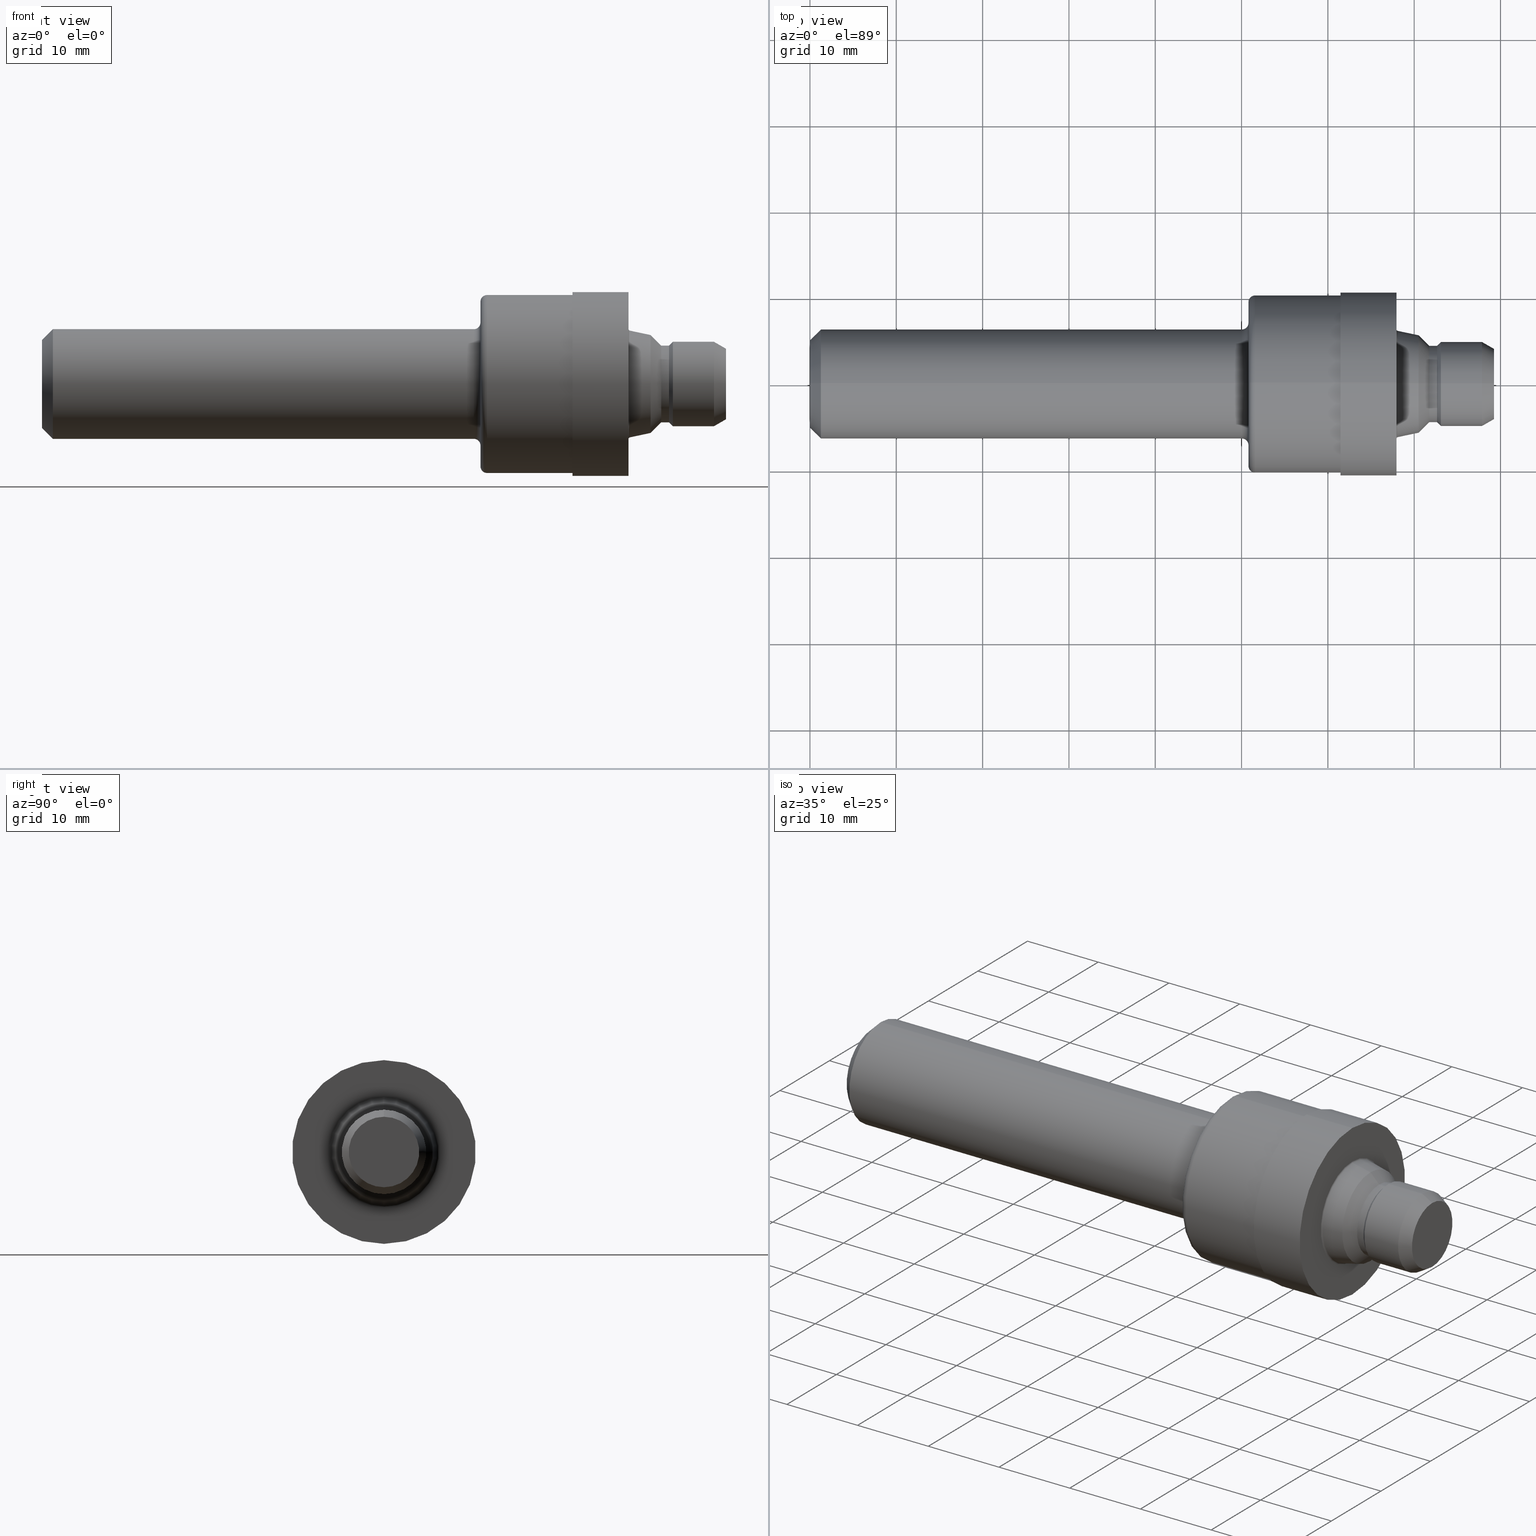
[diagram: canonical four-view strip — front | top / right | iso, engineering-drawing reading convention]
A machine part, canonical four-view strip (front | top / right | iso — engineering-drawing reading convention). The complete STEP part file that produces these views, byte-faithful:
ISO-10303-21;
HEADER;
FILE_DESCRIPTION (( 'STEP AP214' ),
    '1' );
FILE_NAME ('MS16142-4S.STEP',
    '2018-07-16T22:13:42',
    ( '' ),
    ( '' ),
    'SwSTEP 2.0',
    'SolidWorks 2018',
    '' );
FILE_SCHEMA (( 'AUTOMOTIVE_DESIGN' ));
ENDSEC;

DATA;
#1 = CARTESIAN_POINT ( 'NONE',  ( 2.776000000000000245, 2.734413260897318333E-17, -0.2232817872713278307 ) ) ;
#2 = CARTESIAN_POINT ( 'NONE',  ( 2.776000000000000245, 2.734413260897318333E-17, -0.2232817872713278307 ) ) ;
#3 = LINE ( 'NONE', #524, #735 ) ;
#4 = CIRCLE ( 'NONE', #502, 0.2000000000000001776 ) ;
#5 = EDGE_CURVE ( 'NONE', #298, #300, #646, .T. ) ;
#6 = CARTESIAN_POINT ( 'NONE',  ( 3.120000000000000107, 0.1607457351945705826, 0.0000000000000000000 ) ) ;
#7 = EDGE_LOOP ( 'NONE', ( #739, #464, #361, #93 ) ) ;
#8 = VERTEX_POINT ( 'NONE', #757 ) ;
#9 = DIRECTION ( 'NONE',  ( -0.9781476007338048007, 2.546183866652887149E-17, -0.2079116908177638945 ) ) ;
#10 = EDGE_LOOP ( 'NONE', ( #124, #440, #521, #709 ) ) ;
#11 = DIRECTION ( 'NONE',  ( -1.000000000000000000, -0.0000000000000000000, -0.0000000000000000000 ) ) ;
#12 = ADVANCED_FACE ( 'NONE', ( #44 ), #250, .T. ) ;
#13 = LINE ( 'NONE', #496, #180 ) ;
#14 = DIRECTION ( 'NONE',  ( -1.000000000000000000, -0.0000000000000000000, -0.0000000000000000000 ) ) ;
#15 = DIRECTION ( 'NONE',  ( -1.000000000000000000, -0.0000000000000000000, -0.0000000000000000000 ) ) ;
#16 = VERTEX_POINT ( 'NONE', #763 ) ;
#17 = CARTESIAN_POINT ( 'NONE',  ( 0.05000000000000000278, 3.061616997868383018E-17, -0.2500000000000000000 ) ) ;
#18 = VERTEX_POINT ( 'NONE', #723 ) ;
#19 = EDGE_CURVE ( 'NONE', #166, #760, #421, .T. ) ;
#20 = DIRECTION ( 'NONE',  ( 0.0000000000000000000, 0.0000000000000000000, 1.000000000000000000 ) ) ;
#21 = CIRCLE ( 'NONE', #681, 0.4189999999999999836 ) ;
#22 = ADVANCED_FACE ( 'NONE', ( #465 ), #690, .T. ) ;
#23 = PRODUCT_CONTEXT ( 'NONE', #825, 'mechanical' ) ;
#24 = VECTOR ( 'NONE', #9, 39.37007874015747433 ) ;
#25 = CARTESIAN_POINT ( 'NONE',  ( 2.675000000000000266, 3.071700497732116091E-17, -0.2508233802489627240 ) ) ;
#26 = CARTESIAN_POINT ( 'NONE',  ( 2.000000000000000000, 0.0000000000000000000, 0.0000000000000000000 ) ) ;
#27 = CONICAL_SURFACE ( 'NONE', #191, 0.1749999999999999889, 0.7853981633974405074 ) ;
#28 = LENGTH_MEASURE_WITH_UNIT ( LENGTH_MEASURE( 0.02539999999999999897 ), #732 );
#29 = ORIENTED_EDGE ( 'NONE', *, *, #319, .F. ) ;
#30 = ORIENTED_EDGE ( 'NONE', *, *, #733, .T. ) ;
#31 = CIRCLE ( 'NONE', #622, 0.4059999999999999720 ) ;
#32 = CARTESIAN_POINT ( 'NONE',  ( 2.824281787271328614, 0.0000000000000000000, 0.0000000000000000000 ) ) ;
#33 = PLANE ( 'NONE',  #355 ) ;
#34 = CIRCLE ( 'NONE', #429, 0.1749999999999999889 ) ;
#35 = FACE_OUTER_BOUND ( 'NONE', #323, .T. ) ;
#36 = SURFACE_STYLE_FILL_AREA ( #827 ) ;
#37 = APPLICATION_PROTOCOL_DEFINITION ( 'draft international standard', 'automotive_design', 1998, #753 ) ;
#38 = ADVANCED_FACE ( 'NONE', ( #56 ), #666, .T. ) ;
#39 = CIRCLE ( 'NONE', #424, 0.2434872732434595621 ) ;
#40 = EDGE_CURVE ( 'NONE', #819, #790, #301, .T. ) ;
#41 = ORIENTED_EDGE ( 'NONE', *, *, #535, .F. ) ;
#42 = ORIENTED_EDGE ( 'NONE', *, *, #319, .T. ) ;
#43 = DIRECTION ( 'NONE',  ( -1.000000000000000000, -0.0000000000000000000, -0.0000000000000000000 ) ) ;
#44 = FACE_OUTER_BOUND ( 'NONE', #7, .T. ) ;
#45 = FACE_OUTER_BOUND ( 'NONE', #10, .T. ) ;
#46 = DIRECTION ( 'NONE',  ( 0.0000000000000000000, 0.0000000000000000000, -1.000000000000000000 ) ) ;
#47 = CARTESIAN_POINT ( 'NONE',  ( 0.05000000000000000278, 0.0000000000000000000, 0.0000000000000000000 ) ) ;
#48 = EDGE_LOOP ( 'NONE', ( #810, #720 ) ) ;
#49 = CARTESIAN_POINT ( 'NONE',  ( 2.029999999999999805, 0.0000000000000000000, 0.0000000000000000000 ) ) ;
#50 = DIRECTION ( 'NONE',  ( 0.0000000000000000000, 0.0000000000000000000, 1.000000000000000000 ) ) ;
#51 = EDGE_CURVE ( 'NONE', #380, #608, #21, .T. ) ;
#52 = DIRECTION ( 'NONE',  ( 0.0000000000000000000, 0.0000000000000000000, 1.000000000000000000 ) ) ;
#53 = DIRECTION ( 'NONE',  ( -1.000000000000000000, -0.0000000000000000000, -0.0000000000000000000 ) ) ;
#54 = ADVANCED_FACE ( 'NONE', ( #600 ), #569, .T. ) ;
#55 = ORIENTED_EDGE ( 'NONE', *, *, #40, .F. ) ;
#56 = FACE_OUTER_BOUND ( 'NONE', #821, .T. ) ;
#57 = CARTESIAN_POINT ( 'NONE',  ( 0.05000000000000000278, 0.0000000000000000000, 0.0000000000000000000 ) ) ;
#58 = CARTESIAN_POINT ( 'NONE',  ( 0.05000000000000000278, 0.0000000000000000000, 0.0000000000000000000 ) ) ;
#59 = DIRECTION ( 'NONE',  ( 0.0000000000000000000, 0.0000000000000000000, 1.000000000000000000 ) ) ;
#60 = CARTESIAN_POINT ( 'NONE',  ( 2.420000000000000373, 0.0000000000000000000, 0.0000000000000000000 ) ) ;
#61 = PRODUCT_RELATED_PRODUCT_CATEGORY ( 'part', '', ( #224 ) ) ;
#62 = ADVANCED_FACE ( 'NONE', ( #537 ), #352, .T. ) ;
#63 = ORIENTED_EDGE ( 'NONE', *, *, #738, .F. ) ;
#64 = DIRECTION ( 'NONE',  ( 0.0000000000000000000, 0.0000000000000000000, -1.000000000000000000 ) ) ;
#65 = PRODUCT_DEFINITION_FORMATION_WITH_SPECIFIED_SOURCE ( 'ANY', '', #224, .NOT_KNOWN. ) ;
#66 = ORIENTED_EDGE ( 'NONE', *, *, #436, .F. ) ;
#67 = PRODUCT_DEFINITION ( 'UNKNOWN', '', #65, #500 ) ;
#68 = ADVANCED_FACE ( 'NONE', ( #724, #712 ), #107, .F. ) ;
#69 = ADVANCED_FACE ( 'NONE', ( #632 ), #312, .T. ) ;
#70 = CIRCLE ( 'NONE', #456, 0.007499999999999646706 ) ;
#71 = CARTESIAN_POINT ( 'NONE',  ( 2.877499999999999503, 0.0000000000000000000, 0.0000000000000000000 ) ) ;
#72 = EDGE_CURVE ( 'NONE', #149, #300, #373, .T. ) ;
#73 = ADVANCED_FACE ( 'NONE', ( #101 ), #434, .T. ) ;
#74 = EDGE_LOOP ( 'NONE', ( #132, #399 ) ) ;
#75 = ORIENTED_EDGE ( 'NONE', *, *, #102, .F. ) ;
#76 = ORIENTED_EDGE ( 'NONE', *, *, #360, .F. ) ;
#77 = AXIS2_PLACEMENT_3D ( 'NONE', #785, #258, #165 ) ;
#78 = DIRECTION ( 'NONE',  ( -1.000000000000000000, -0.0000000000000000000, -0.0000000000000000000 ) ) ;
#79 = DIRECTION ( 'NONE',  ( -1.000000000000000000, -0.0000000000000000000, -0.0000000000000000000 ) ) ;
#80 = FACE_OUTER_BOUND ( 'NONE', #777, .T. ) ;
#81 = CARTESIAN_POINT ( 'NONE',  ( 0.0000000000000000000, 0.0000000000000000000, 0.0000000000000000000 ) ) ;
#82 = CARTESIAN_POINT ( 'NONE',  ( 1.969999999999999973, 0.0000000000000000000, 0.0000000000000000000 ) ) ;
#83 = ORIENTED_EDGE ( 'NONE', *, *, #729, .T. ) ;
#84 = VERTEX_POINT ( 'NONE', #17 ) ;
#85 = CARTESIAN_POINT ( 'NONE',  ( 2.420000000000000373, 0.4060000000000000275, 0.0000000000000000000 ) ) ;
#86 = ORIENTED_EDGE ( 'NONE', *, *, #738, .T. ) ;
#87 = DIRECTION ( 'NONE',  ( -1.000000000000000000, -0.0000000000000000000, -0.0000000000000000000 ) ) ;
#88 = CIRCLE ( 'NONE', #547, 0.02999999999999998848 ) ;
#89 =( GEOMETRIC_REPRESENTATION_CONTEXT ( 3 ) GLOBAL_UNCERTAINTY_ASSIGNED_CONTEXT ( ( #302 ) ) GLOBAL_UNIT_ASSIGNED_CONTEXT ( ( #835, #837, #839 ) ) REPRESENTATION_CONTEXT ( 'NONE', 'WORKASPACE' ) );
#90 = PLANE ( 'NONE',  #574 ) ;
#91 = MECHANICAL_DESIGN_GEOMETRIC_PRESENTATION_REPRESENTATION (  '', ( #97 ), #89 ) ;
#92 = VECTOR ( 'NONE', #610, 39.37007874015748854 ) ;
#93 = ORIENTED_EDGE ( 'NONE', *, *, #163, .F. ) ;
#94 = VERTEX_POINT ( 'NONE', #433 ) ;
#95 = PRESENTATION_LAYER_ASSIGNMENT (  '', '', ( #97 ) ) ;
#96 = TOROIDAL_SURFACE ( 'NONE', #442, 0.2508233802489627240, 0.007499999999999642369 ) ;
#97 = STYLED_ITEM ( 'NONE', ( #318 ), #384 ) ;
#98 = ADVANCED_FACE ( 'NONE', ( #265 ), #90, .F. ) ;
#99 = CARTESIAN_POINT ( 'NONE',  ( 2.675000000000000266, 0.0000000000000000000, 0.0000000000000000000 ) ) ;
#100 = VERTEX_POINT ( 'NONE', #368 ) ;
#101 = FACE_OUTER_BOUND ( 'NONE', #432, .T. ) ;
#102 = EDGE_CURVE ( 'NONE', #300, #149, #31, .T. ) ;
#103 = CIRCLE ( 'NONE', #438, 0.4189999999999999836 ) ;
#104 = DIRECTION ( 'NONE',  ( 0.0000000000000000000, 0.0000000000000000000, 1.000000000000000000 ) ) ;
#105 = COLOUR_RGB ( '',0.7529411764705882248, 0.7529411764705882248, 0.7529411764705882248 ) ;
#106 = CARTESIAN_POINT ( 'NONE',  ( 0.0000000000000000000, 0.0000000000000000000, 0.0000000000000000000 ) ) ;
#107 = PLANE ( 'NONE',  #617 ) ;
#108 = VERTEX_POINT ( 'NONE', #437 ) ;
#109 =( GEOMETRIC_REPRESENTATION_CONTEXT ( 3 ) GLOBAL_UNCERTAINTY_ASSIGNED_CONTEXT ( ( #271 ) ) GLOBAL_UNIT_ASSIGNED_CONTEXT ( ( #804, #806, #811 ) ) REPRESENTATION_CONTEXT ( 'NONE', 'WORKASPACE' ) );
#110 = CIRCLE ( 'NONE', #553, 0.4060000000000000275 ) ;
#111 = CARTESIAN_POINT ( 'NONE',  ( 0.0000000000000000000, 0.0000000000000000000, 0.0000000000000000000 ) ) ;
#112 = DIRECTION ( 'NONE',  ( -1.000000000000000000, -0.0000000000000000000, -0.0000000000000000000 ) ) ;
#113 = AXIS2_PLACEMENT_3D ( 'NONE', #787, #791, #792 ) ;
#114 = AXIS2_PLACEMENT_3D ( 'NONE', #764, #767, #770 ) ;
#115 = DIRECTION ( 'NONE',  ( -0.7071067811865530128, 8.659560562354865065E-17, -0.7071067811865420216 ) ) ;
#116 = ORIENTED_EDGE ( 'NONE', *, *, #362, .T. ) ;
#117 = VECTOR ( 'NONE', #406, 39.37007874015748143 ) ;
#118 = CARTESIAN_POINT ( 'NONE',  ( 2.776000000000000245, 0.0000000000000000000, 0.2232817872713278307 ) ) ;
#119 = AXIS2_PLACEMENT_3D ( 'NONE', #748, #755, #759 ) ;
#120 = FACE_OUTER_BOUND ( 'NONE', #48, .T. ) ;
#121 =( GEOMETRIC_REPRESENTATION_CONTEXT ( 3 ) GLOBAL_UNCERTAINTY_ASSIGNED_CONTEXT ( ( #240 ) ) GLOBAL_UNIT_ASSIGNED_CONTEXT ( ( #734, #736, #737 ) ) REPRESENTATION_CONTEXT ( 'NONE', 'WORKASPACE' ) );
#122 = CARTESIAN_POINT ( 'NONE',  ( 0.0000000000000000000, 0.0000000000000000000, 0.0000000000000000000 ) ) ;
#123 = CIRCLE ( 'NONE', #184, 0.1607457351945705826 ) ;
#124 = ORIENTED_EDGE ( 'NONE', *, *, #830, .F. ) ;
#125 = MECHANICAL_DESIGN_GEOMETRIC_PRESENTATION_REPRESENTATION (  '', ( #138 ), #121 ) ;
#126 = EDGE_LOOP ( 'NONE', ( #41, #674, #707, #189 ) ) ;
#127 = DIRECTION ( 'NONE',  ( 0.0000000000000000000, 0.0000000000000000000, 1.000000000000000000 ) ) ;
#128 = DIRECTION ( 'NONE',  ( -1.000000000000000000, -0.0000000000000000000, -0.0000000000000000000 ) ) ;
#129 = CIRCLE ( 'NONE', #393, 0.2500000000000000000 ) ;
#130 = EDGE_CURVE ( 'NONE', #444, #210, #327, .T. ) ;
#131 = CARTESIAN_POINT ( 'NONE',  ( 2.000000000000000000, 0.2799999999999999711, 0.0000000000000000000 ) ) ;
#132 = ORIENTED_EDGE ( 'NONE', *, *, #253, .T. ) ;
#133 = ORIENTED_EDGE ( 'NONE', *, *, #730, .F. ) ;
#134 = CARTESIAN_POINT ( 'NONE',  ( 0.05000000000000000278, 0.0000000000000000000, 0.0000000000000000000 ) ) ;
#135 = PRESENTATION_LAYER_ASSIGNMENT (  '', '', ( #138 ) ) ;
#136 = DIRECTION ( 'NONE',  ( -1.000000000000000000, -0.0000000000000000000, -0.0000000000000000000 ) ) ;
#137 = EDGE_CURVE ( 'NONE', #819, #84, #554, .T. ) ;
#138 = STYLED_ITEM ( 'NONE', ( #705 ), #813 ) ;
#139 = DIRECTION ( 'NONE',  ( 0.0000000000000000000, 0.0000000000000000000, 1.000000000000000000 ) ) ;
#140 = AXIS2_PLACEMENT_3D ( 'NONE', #714, #719, #721 ) ;
#141 = ORIENTED_EDGE ( 'NONE', *, *, #801, .F. ) ;
#142 = VECTOR ( 'NONE', #780, 39.37007874015748143 ) ;
#143 = DIRECTION ( 'NONE',  ( 0.0000000000000000000, 0.0000000000000000000, 1.000000000000000000 ) ) ;
#144 = TOROIDAL_SURFACE ( 'NONE', #448, 0.2799999999999999711, 0.02999999999999997113 ) ;
#145 = CYLINDRICAL_SURFACE ( 'NONE', #196, 0.1925000000000000044 ) ;
#146 = AXIS2_PLACEMENT_3D ( 'NONE', #641, #667, #761 ) ;
#147 = CIRCLE ( 'NONE', #113, 0.2508233802489627240 ) ;
#148 = DIRECTION ( 'NONE',  ( 0.0000000000000000000, 0.0000000000000000000, -1.000000000000000000 ) ) ;
#149 = VERTEX_POINT ( 'NONE', #620 ) ;
#150 = AXIS2_PLACEMENT_3D ( 'NONE', #685, #687, #671 ) ;
#151 = FACE_OUTER_BOUND ( 'NONE', #279, .T. ) ;
#152 = EDGE_LOOP ( 'NONE', ( #619, #809, #653, #246 ) ) ;
#153 = ORIENTED_EDGE ( 'NONE', *, *, #818, .T. ) ;
#154 = ORIENTED_EDGE ( 'NONE', *, *, #225, .T. ) ;
#155 = DIRECTION ( 'NONE',  ( -1.000000000000000000, -0.0000000000000000000, -0.0000000000000000000 ) ) ;
#156 = ORIENTED_EDGE ( 'NONE', *, *, #717, .F. ) ;
#157 = DIRECTION ( 'NONE',  ( 1.000000000000000000, 0.0000000000000000000, 0.0000000000000000000 ) ) ;
#158 = EDGE_CURVE ( 'NONE', #298, #584, #110, .T. ) ;
#159 = LINE ( 'NONE', #266, #639 ) ;
#160 = DIRECTION ( 'NONE',  ( -1.000000000000000000, -0.0000000000000000000, -0.0000000000000000000 ) ) ;
#161 = AXIS2_PLACEMENT_3D ( 'NONE', #802, #782, #771 ) ;
#162 = ORIENTED_EDGE ( 'NONE', *, *, #288, .F. ) ;
#163 = EDGE_CURVE ( 'NONE', #8, #560, #525, .T. ) ;
#164 = ORIENTED_EDGE ( 'NONE', *, *, #784, .T. ) ;
#165 = DIRECTION ( 'NONE',  ( 1.000000000000000000, 0.0000000000000000000, 0.0000000000000000000 ) ) ;
#166 = VERTEX_POINT ( 'NONE', #725 ) ;
#167 = AXIS2_PLACEMENT_3D ( 'NONE', #673, #675, #680 ) ;
#168 = AXIS2_PLACEMENT_3D ( 'NONE', #656, #661, #665 ) ;
#169 = CARTESIAN_POINT ( 'NONE',  ( 2.824281787271328614, 2.143131898507867989E-17, -0.1749999999999999889 ) ) ;
#170 = FACE_OUTER_BOUND ( 'NONE', #218, .T. ) ;
#171 = CONICAL_SURFACE ( 'NONE', #242, 0.1749999999999999889, 0.7853981633974405074 ) ;
#172 = DIRECTION ( 'NONE',  ( 0.0000000000000000000, 0.0000000000000000000, 1.000000000000000000 ) ) ;
#173 = CIRCLE ( 'NONE', #167, 0.1749999999999999889 ) ;
#174 = ORIENTED_EDGE ( 'NONE', *, *, #769, .F. ) ;
#175 = CARTESIAN_POINT ( 'NONE',  ( 1.969999999999999973, 0.0000000000000000000, 0.0000000000000000000 ) ) ;
#176 = VERTEX_POINT ( 'NONE', #25 ) ;
#177 = AXIS2_PLACEMENT_3D ( 'NONE', #644, #648, #651 ) ;
#178 = EDGE_CURVE ( 'NONE', #790, #503, #88, .T. ) ;
#179 = DIRECTION ( 'NONE',  ( -1.000000000000000000, -0.0000000000000000000, -0.0000000000000000000 ) ) ;
#180 = VECTOR ( 'NONE', #504, 39.37007874015748143 ) ;
#181 = ORIENTED_EDGE ( 'NONE', *, *, #158, .T. ) ;
#182 = DIRECTION ( 'NONE',  ( 0.0000000000000000000, 0.0000000000000000000, 1.000000000000000000 ) ) ;
#183 = PRODUCT_DEFINITION_SHAPE ( 'NONE', 'NONE',  #67 ) ;
#184 = AXIS2_PLACEMENT_3D ( 'NONE', #627, #628, #630 ) ;
#185 = ORIENTED_EDGE ( 'NONE', *, *, #823, .F. ) ;
#186 = EDGE_CURVE ( 'NONE', #84, #18, #750, .T. ) ;
#187 = CARTESIAN_POINT ( 'NONE',  ( 2.029999999999999805, 4.972066004538254105E-17, -0.4059999999999999720 ) ) ;
#188 = ORIENTED_EDGE ( 'NONE', *, *, #494, .T. ) ;
#189 = ORIENTED_EDGE ( 'NONE', *, *, #717, .T. ) ;
#190 = PLANE ( 'NONE',  #467 ) ;
#191 = AXIS2_PLACEMENT_3D ( 'NONE', #561, #614, #563 ) ;
#192 = CIRCLE ( 'NONE', #462, 0.4060000000000000275 ) ;
#193 = DIRECTION ( 'NONE',  ( 0.0000000000000000000, 0.0000000000000000000, 1.000000000000000000 ) ) ;
#194 = ORIENTED_EDGE ( 'NONE', *, *, #277, .T. ) ;
#195 = VERTEX_POINT ( 'NONE', #415 ) ;
#196 = AXIS2_PLACEMENT_3D ( 'NONE', #520, #507, #515 ) ;
#197 = AXIS2_PLACEMENT_3D ( 'NONE', #463, #454, #400 ) ;
#198 = EDGE_LOOP ( 'NONE', ( #156, #664 ) ) ;
#199 = CARTESIAN_POINT ( 'NONE',  ( 0.0000000000000000000, 3.061616997868383018E-17, -0.2500000000000000000 ) ) ;
#200 = DIRECTION ( 'NONE',  ( 0.0000000000000000000, 0.0000000000000000000, -1.000000000000000000 ) ) ;
#201 = ADVANCED_FACE ( 'NONE', ( #572 ), #832, .T. ) ;
#202 = DIRECTION ( 'NONE',  ( 0.0000000000000000000, 0.0000000000000000000, 1.000000000000000000 ) ) ;
#203 = LINE ( 'NONE', #488, #281 ) ;
#204 = AXIS2_PLACEMENT_3D ( 'NONE', #565, #566, #571 ) ;
#205 = TOROIDAL_SURFACE ( 'NONE', #146, 0.2508233802489627240, 0.007499999999999642369 ) ;
#206 = DIRECTION ( 'NONE',  ( -1.000000000000000000, -0.0000000000000000000, -0.0000000000000000000 ) ) ;
#207 = DIRECTION ( 'NONE',  ( 1.000000000000000000, 0.0000000000000000000, 0.0000000000000000000 ) ) ;
#208 = ORIENTED_EDGE ( 'NONE', *, *, #752, .F. ) ;
#209 = EDGE_LOOP ( 'NONE', ( #410, #587, #534, #514 ) ) ;
#210 = VERTEX_POINT ( 'NONE', #1 ) ;
#211 = ORIENTED_EDGE ( 'NONE', *, *, #742, .T. ) ;
#212 = CARTESIAN_POINT ( 'NONE',  ( 2.029999999999999805, 4.604671964794048956E-17, -0.3760000000000000564 ) ) ;
#213 = ORIENTED_EDGE ( 'NONE', *, *, #744, .T. ) ;
#214 = AXIS2_PLACEMENT_3D ( 'NONE', #530, #532, #545 ) ;
#215 = CARTESIAN_POINT ( 'NONE',  ( 3.120000000000000107, 0.0000000000000000000, 0.0000000000000000000 ) ) ;
#216 = DIRECTION ( 'NONE',  ( -0.0000000000000000000, 1.000000000000000000, 1.224646799147353207E-16 ) ) ;
#217 = EDGE_CURVE ( 'NONE', #210, #523, #473, .T. ) ;
#218 = EDGE_LOOP ( 'NONE', ( #42, #296, #260, #740 ) ) ;
#219 = ORIENTED_EDGE ( 'NONE', *, *, #331, .T. ) ;
#220 = DIRECTION ( 'NONE',  ( 0.0000000000000000000, -1.224646799147354933E-16, 1.000000000000000000 ) ) ;
#221 = ORIENTED_EDGE ( 'NONE', *, *, #40, .T. ) ;
#222 = ORIENTED_EDGE ( 'NONE', *, *, #535, .T. ) ;
#223 = ORIENTED_EDGE ( 'NONE', *, *, #372, .T. ) ;
#224 = PRODUCT ( 'MS16142-4S', 'MS16142-4S', '', ( #23 ) ) ;
#225 = EDGE_CURVE ( 'NONE', #523, #295, #304, .T. ) ;
#226 = CARTESIAN_POINT ( 'NONE',  ( 2.877499999999999503, 0.0000000000000000000, 0.0000000000000000000 ) ) ;
#227 = ADVANCED_FACE ( 'NONE', ( #170 ), #603, .T. ) ;
#228 = CARTESIAN_POINT ( 'NONE',  ( 2.029999999999999805, 0.0000000000000000000, 0.3760000000000000564 ) ) ;
#229 = FACE_OUTER_BOUND ( 'NONE', #749, .T. ) ;
#230 = DIRECTION ( 'NONE',  ( 0.0000000000000000000, -1.000000000000000000, 0.0000000000000000000 ) ) ;
#231 = CIRCLE ( 'NONE', #345, 0.02999999999999995379 ) ;
#232 = DIRECTION ( 'NONE',  ( 0.0000000000000000000, 0.0000000000000000000, 1.000000000000000000 ) ) ;
#233 = DIRECTION ( 'NONE',  ( 0.0000000000000000000, 0.0000000000000000000, -1.000000000000000000 ) ) ;
#234 = AXIS2_PLACEMENT_3D ( 'NONE', #466, #470, #472 ) ;
#235 = VECTOR ( 'NONE', #594, 39.37007874015748854 ) ;
#236 = ORIENTED_EDGE ( 'NONE', *, *, #339, .F. ) ;
#237 = DIRECTION ( 'NONE',  ( 0.0000000000000000000, 0.0000000000000000000, 1.000000000000000000 ) ) ;
#238 = CARTESIAN_POINT ( 'NONE',  ( 0.0000000000000000000, 0.0000000000000000000, 0.0000000000000000000 ) ) ;
#239 = AXIS2_PLACEMENT_3D ( 'NONE', #365, #371, #354 ) ;
#240 = UNCERTAINTY_MEASURE_WITH_UNIT (LENGTH_MEASURE( 1.000000000000000082E-05 ), #734, 'distance_accuracy_value', 'NONE');
#241 = CARTESIAN_POINT ( 'NONE',  ( 3.120000000000000107, 0.0000000000000000000, 0.0000000000000000000 ) ) ;
#242 = AXIS2_PLACEMENT_3D ( 'NONE', #435, #417, #422 ) ;
#243 = AXIS2_PLACEMENT_3D ( 'NONE', #392, #389, #403 ) ;
#244 = ORIENTED_EDGE ( 'NONE', *, *, #372, .F. ) ;
#245 = DIRECTION ( 'NONE',  ( -1.000000000000000000, -0.0000000000000000000, -0.0000000000000000000 ) ) ;
#246 = ORIENTED_EDGE ( 'NONE', *, *, #494, .F. ) ;
#247 = EDGE_LOOP ( 'NONE', ( #174, #625, #311, #536 ) ) ;
#248 = DIRECTION ( 'NONE',  ( 0.0000000000000000000, 0.0000000000000000000, 1.000000000000000000 ) ) ;
#249 = ORIENTED_EDGE ( 'NONE', *, *, #768, .F. ) ;
#250 = TOROIDAL_SURFACE ( 'NONE', #702, 0.3760000000000000564, 0.02999999999999998848 ) ;
#251 = CARTESIAN_POINT ( 'NONE',  ( 2.682500000000000107, 0.0000000000000000000, 0.2508233802489627240 ) ) ;
#252 = CARTESIAN_POINT ( 'NONE',  ( 0.0000000000000000000, 0.0000000000000000000, 0.0000000000000000000 ) ) ;
#253 = EDGE_CURVE ( 'NONE', #16, #322, #4, .T. ) ;
#254 = FACE_OUTER_BOUND ( 'NONE', #559, .T. ) ;
#255 = LINE ( 'NONE', #573, #369 ) ;
#256 = DIRECTION ( 'NONE',  ( 0.0000000000000000000, 0.0000000000000000000, -1.000000000000000000 ) ) ;
#257 = VECTOR ( 'NONE', #762, 39.37007874015748143 ) ;
#258 = DIRECTION ( 'NONE',  ( 0.0000000000000000000, 0.0000000000000000000, 1.000000000000000000 ) ) ;
#259 = ORIENTED_EDGE ( 'NONE', *, *, #818, .F. ) ;
#260 = ORIENTED_EDGE ( 'NONE', *, *, #277, .F. ) ;
#261 = AXIS2_PLACEMENT_3D ( 'NONE', #324, #317, #353 ) ;
#262 = EDGE_LOOP ( 'NONE', ( #194, #83, #696, #249 ) ) ;
#263 = DIRECTION ( 'NONE',  ( 1.000000000000000000, 0.0000000000000000000, 0.0000000000000000000 ) ) ;
#264 = DIRECTION ( 'NONE',  ( -1.000000000000000000, -0.0000000000000000000, -0.0000000000000000000 ) ) ;
#265 = FACE_OUTER_BOUND ( 'NONE', #74, .T. ) ;
#266 = CARTESIAN_POINT ( 'NONE',  ( 0.05000000000000000278, 0.0000000000000000000, -0.2500000000000000000 ) ) ;
#267 = AXIS2_PLACEMENT_3D ( 'NONE', #356, #358, #364 ) ;
#268 = AXIS2_PLACEMENT_3D ( 'NONE', #286, #303, #310 ) ;
#269 = CARTESIAN_POINT ( 'NONE',  ( 2.000000000000000000, 0.0000000000000000000, 0.2799999999999999711 ) ) ;
#270 = ADVANCED_FACE ( 'NONE', ( #519 ), #557, .F. ) ;
#271 = UNCERTAINTY_MEASURE_WITH_UNIT (LENGTH_MEASURE( 1.000000000000000082E-05 ), #804, 'distance_accuracy_value', 'NONE');
#272 = CIRCLE ( 'NONE', #114, 0.2508233802489627240 ) ;
#273 = DIRECTION ( 'NONE',  ( -1.000000000000000000, -0.0000000000000000000, -0.0000000000000000000 ) ) ;
#274 = AXIS2_PLACEMENT_3D ( 'NONE', #252, #264, #248 ) ;
#275 = ADVANCED_FACE ( 'NONE', ( #683 ), #190, .F. ) ;
#276 = ORIENTED_EDGE ( 'NONE', *, *, #469, .T. ) ;
#277 = EDGE_CURVE ( 'NONE', #843, #575, #754, .T. ) ;
#278 = DIRECTION ( 'NONE',  ( -0.0000000000000000000, 0.0000000000000000000, 1.000000000000000000 ) ) ;
#279 = EDGE_LOOP ( 'NONE', ( #618, #596, #154, #76 ) ) ;
#280 = DIRECTION ( 'NONE',  ( 0.0000000000000000000, 0.0000000000000000000, 1.000000000000000000 ) ) ;
#281 = VECTOR ( 'NONE', #483, 39.37007874015748143 ) ;
#282 = CARTESIAN_POINT ( 'NONE',  ( 0.0000000000000000000, 0.0000000000000000000, 0.4059999999999999720 ) ) ;
#283 = DIRECTION ( 'NONE',  ( -1.000000000000000000, -0.0000000000000000000, -0.0000000000000000000 ) ) ;
#284 = EDGE_LOOP ( 'NONE', ( #808, #153, #747, #629 ) ) ;
#285 = ORIENTED_EDGE ( 'NONE', *, *, #137, .T. ) ;
#286 = CARTESIAN_POINT ( 'NONE',  ( 2.675000000000000266, 0.4189999999999999836, 0.0000000000000000000 ) ) ;
#287 = DIRECTION ( 'NONE',  ( -1.000000000000000000, -0.0000000000000000000, -0.0000000000000000000 ) ) ;
#288 = EDGE_CURVE ( 'NONE', #790, #18, #703, .T. ) ;
#289 = ORIENTED_EDGE ( 'NONE', *, *, #506, .F. ) ;
#290 = DIRECTION ( 'NONE',  ( -1.000000000000000000, -0.0000000000000000000, -0.0000000000000000000 ) ) ;
#291 = CARTESIAN_POINT ( 'NONE',  ( 2.680940662318866519, 2.981859098107197200E-17, -0.2434872732434595621 ) ) ;
#292 = DIRECTION ( 'NONE',  ( 0.7071067811865489050, 0.0000000000000000000, -0.7071067811865461294 ) ) ;
#293 = CONICAL_SURFACE ( 'NONE', #150, 0.2232817872713278307, 0.2094395102393241670 ) ;
#294 = PLANE ( 'NONE',  #268 ) ;
#295 = VERTEX_POINT ( 'NONE', #305 ) ;
#296 = ORIENTED_EDGE ( 'NONE', *, *, #769, .T. ) ;
#297 = ORIENTED_EDGE ( 'NONE', *, *, #436, .T. ) ;
#298 = VERTEX_POINT ( 'NONE', #781 ) ;
#299 = CARTESIAN_POINT ( 'NONE',  ( 2.420000000000000373, 5.131270088427409669E-17, -0.4189999999999999836 ) ) ;
#300 = VERTEX_POINT ( 'NONE', #187 ) ;
#301 = CIRCLE ( 'NONE', #698, 0.2500000000000000000 ) ;
#302 = UNCERTAINTY_MEASURE_WITH_UNIT (LENGTH_MEASURE( 1.000000000000000082E-05 ), #835, 'distance_accuracy_value', 'NONE');
#303 = DIRECTION ( 'NONE',  ( -1.000000000000000000, 0.0000000000000000000, -0.0000000000000000000 ) ) ;
#304 = CIRCLE ( 'NONE', #516, 0.2434872732434595621 ) ;
#305 = CARTESIAN_POINT ( 'NONE',  ( 2.680940662318866519, 0.0000000000000000000, 0.2434872732434595621 ) ) ;
#306 = AXIS2_PLACEMENT_3D ( 'NONE', #338, #346, #447 ) ;
#307 = EDGE_CURVE ( 'NONE', #584, #298, #192, .T. ) ;
#308 = EDGE_LOOP ( 'NONE', ( #477, #409 ) ) ;
#309 = EDGE_LOOP ( 'NONE', ( #445, #613, #297, #289 ) ) ;
#310 = DIRECTION ( 'NONE',  ( -0.0000000000000000000, 0.0000000000000000000, 1.000000000000000000 ) ) ;
#311 = ORIENTED_EDGE ( 'NONE', *, *, #774, .T. ) ;
#312 = CYLINDRICAL_SURFACE ( 'NONE', #602, 0.4059999999999999720 ) ;
#313 = DIRECTION ( 'NONE',  ( 0.0000000000000000000, 0.0000000000000000000, -1.000000000000000000 ) ) ;
#314 = AXIS2_PLACEMENT_3D ( 'NONE', #241, #245, #202 ) ;
#315 = CARTESIAN_POINT ( 'NONE',  ( 2.000000000000000000, 0.0000000000000000000, 0.0000000000000000000 ) ) ;
#316 = CARTESIAN_POINT ( 'NONE',  ( 2.776000000000000245, 0.0000000000000000000, 0.2232817872713278307 ) ) ;
#317 = DIRECTION ( 'NONE',  ( -1.000000000000000000, -0.0000000000000000000, -0.0000000000000000000 ) ) ;
#318 = PRESENTATION_STYLE_ASSIGNMENT (( #829 ) ) ;
#319 = EDGE_CURVE ( 'NONE', #94, #788, #700, .T. ) ;
#320 = EDGE_LOOP ( 'NONE', ( #552, #678, #213, #765 ) ) ;
#321 = DIRECTION ( 'NONE',  ( -1.000000000000000000, 0.0000000000000000000, -0.0000000000000000000 ) ) ;
#322 = VERTEX_POINT ( 'NONE', #378 ) ;
#323 = EDGE_LOOP ( 'NONE', ( #824, #478, #86, #259 ) ) ;
#324 = CARTESIAN_POINT ( 'NONE',  ( 2.776000000000000245, 0.0000000000000000000, 0.0000000000000000000 ) ) ;
#325 = CARTESIAN_POINT ( 'NONE',  ( 0.0000000000000000000, 0.0000000000000000000, 0.2500000000000000000 ) ) ;
#326 = EDGE_CURVE ( 'NONE', #760, #166, #814, .T. ) ;
#327 = CIRCLE ( 'NONE', #562, 0.2232817872713278307 ) ;
#328 = EDGE_CURVE ( 'NONE', #760, #608, #604, .T. ) ;
#329 = CARTESIAN_POINT ( 'NONE',  ( 3.065000000000000391, 0.0000000000000000000, 0.0000000000000000000 ) ) ;
#330 = SHAPE_DEFINITION_REPRESENTATION ( #183, #384 ) ;
#331 = EDGE_CURVE ( 'NONE', #480, #210, #439, .T. ) ;
#332 = EDGE_LOOP ( 'NONE', ( #141, #185, #758, #390 ) ) ;
#333 = LINE ( 'NONE', #636, #235 ) ;
#334 = EDGE_LOOP ( 'NONE', ( #55, #222, #428, #615 ) ) ;
#335 = EDGE_LOOP ( 'NONE', ( #836, #164, #351, #654 ) ) ;
#336 = ORIENTED_EDGE ( 'NONE', *, *, #744, .F. ) ;
#337 = DIRECTION ( 'NONE',  ( -0.9781476007338048007, 0.0000000000000000000, 0.2079116908177638945 ) ) ;
#338 = CARTESIAN_POINT ( 'NONE',  ( 1.969999999999999973, 3.429011037612588783E-17, -0.2799999999999999711 ) ) ;
#339 = EDGE_CURVE ( 'NONE', #444, #295, #621, .T. ) ;
#340 = AXIS2_PLACEMENT_3D ( 'NONE', #226, #157, #200 ) ;
#341 = VECTOR ( 'NONE', #337, 39.37007874015747433 ) ;
#342 = ADVANCED_FACE ( 'NONE', ( #367 ), #144, .F. ) ;
#343 = FACE_OUTER_BOUND ( 'NONE', #568, .T. ) ;
#344 = CARTESIAN_POINT ( 'NONE',  ( 2.420000000000000373, 0.0000000000000000000, 0.0000000000000000000 ) ) ;
#345 = AXIS2_PLACEMENT_3D ( 'NONE', #228, #230, #233 ) ;
#346 = DIRECTION ( 'NONE',  ( -0.0000000000000000000, 1.000000000000000000, 1.224646799147353207E-16 ) ) ;
#347 = AXIS2_PLACEMENT_3D ( 'NONE', #212, #216, #220 ) ;
#348 = ORIENTED_EDGE ( 'NONE', *, *, #137, .F. ) ;
#349 = ADVANCED_FACE ( 'NONE', ( #395 ), #96, .F. ) ;
#350 = CARTESIAN_POINT ( 'NONE',  ( 2.682500000000000107, 0.0000000000000000000, 0.0000000000000000000 ) ) ;
#351 = ORIENTED_EDGE ( 'NONE', *, *, #768, .T. ) ;
#352 = CONICAL_SURFACE ( 'NONE', #640, 0.2500000000000000000, 0.7853981633974463916 ) ;
#353 = DIRECTION ( 'NONE',  ( 0.0000000000000000000, 0.0000000000000000000, 1.000000000000000000 ) ) ;
#354 = DIRECTION ( 'NONE',  ( 0.0000000000000000000, 0.0000000000000000000, 1.000000000000000000 ) ) ;
#355 = AXIS2_PLACEMENT_3D ( 'NONE', #131, #263, #148 ) ;
#356 = CARTESIAN_POINT ( 'NONE',  ( 2.000000000000000000, 0.0000000000000000000, 0.0000000000000000000 ) ) ;
#357 = CYLINDRICAL_SURFACE ( 'NONE', #401, 0.4189999999999999836 ) ;
#358 = DIRECTION ( 'NONE',  ( -1.000000000000000000, -0.0000000000000000000, -0.0000000000000000000 ) ) ;
#359 = DIRECTION ( 'NONE',  ( 0.0000000000000000000, 0.0000000000000000000, 1.000000000000000000 ) ) ;
#360 = EDGE_CURVE ( 'NONE', #195, #295, #70, .T. ) ;
#361 = ORIENTED_EDGE ( 'NONE', *, *, #481, .T. ) ;
#362 = EDGE_CURVE ( 'NONE', #608, #380, #103, .T. ) ;
#363 = ORIENTED_EDGE ( 'NONE', *, *, #186, .F. ) ;
#364 = DIRECTION ( 'NONE',  ( 0.0000000000000000000, 0.0000000000000000000, 1.000000000000000000 ) ) ;
#365 = CARTESIAN_POINT ( 'NONE',  ( 0.0000000000000000000, 0.0000000000000000000, 0.0000000000000000000 ) ) ;
#366 = AXIS2_PLACEMENT_3D ( 'NONE', #175, #179, #193 ) ;
#367 = FACE_OUTER_BOUND ( 'NONE', #334, .T. ) ;
#368 = CARTESIAN_POINT ( 'NONE',  ( 2.824281787271328614, 0.0000000000000000000, 0.1749999999999999889 ) ) ;
#369 = VECTOR ( 'NONE', #581, 39.37007874015748143 ) ;
#370 = VERTEX_POINT ( 'NONE', #394 ) ;
#371 = DIRECTION ( 'NONE',  ( -1.000000000000000000, -0.0000000000000000000, -0.0000000000000000000 ) ) ;
#372 = EDGE_CURVE ( 'NONE', #100, #480, #34, .T. ) ;
#373 = CIRCLE ( 'NONE', #611, 0.4059999999999999720 ) ;
#374 = CARTESIAN_POINT ( 'NONE',  ( 2.420000000000000373, 0.0000000000000000000, 0.4060000000000000275 ) ) ;
#375 = EDGE_CURVE ( 'NONE', #295, #523, #39, .T. ) ;
#376 = FACE_BOUND ( 'NONE', #198, .T. ) ;
#377 = CONICAL_SURFACE ( 'NONE', #340, 0.1925000000000000044, 0.7853981633974639331 ) ;
#378 = CARTESIAN_POINT ( 'NONE',  ( 0.0000000000000000000, 2.755455298081545702E-17, 0.2000000000000001776 ) ) ;
#379 = ORIENTED_EDGE ( 'NONE', *, *, #375, .F. ) ;
#380 = VERTEX_POINT ( 'NONE', #299 ) ;
#381 = DIRECTION ( 'NONE',  ( -1.000000000000000000, -0.0000000000000000000, -0.0000000000000000000 ) ) ;
#382 = CARTESIAN_POINT ( 'NONE',  ( 0.0000000000000000000, 0.0000000000000000000, 0.0000000000000000000 ) ) ;
#383 = ADVANCED_FACE ( 'NONE', ( #80 ), #357, .T. ) ;
#384 = ADVANCED_BREP_SHAPE_REPRESENTATION ( 'MS16142-4S', ( #813, #77 ), #109 ) ;
#385 = VECTOR ( 'NONE', #115, 39.37007874015748143 ) ;
#386 = CARTESIAN_POINT ( 'NONE',  ( 0.0000000000000000000, 0.0000000000000000000, 0.0000000000000000000 ) ) ;
#387 = AXIS2_PLACEMENT_3D ( 'NONE', #315, #290, #280 ) ;
#388 = DIRECTION ( 'NONE',  ( 0.0000000000000000000, 0.0000000000000000000, 1.000000000000000000 ) ) ;
#389 = DIRECTION ( 'NONE',  ( -1.000000000000000000, -0.0000000000000000000, -0.0000000000000000000 ) ) ;
#390 = ORIENTED_EDGE ( 'NONE', *, *, #375, .T. ) ;
#391 = ADVANCED_FACE ( 'NONE', ( #45 ), #527, .T. ) ;
#392 = CARTESIAN_POINT ( 'NONE',  ( 2.029999999999999805, 0.0000000000000000000, 0.0000000000000000000 ) ) ;
#393 = AXIS2_PLACEMENT_3D ( 'NONE', #134, #136, #139 ) ;
#394 = CARTESIAN_POINT ( 'NONE',  ( 2.877499999999999503, 0.0000000000000000000, 0.1925000000000000044 ) ) ;
#395 = FACE_OUTER_BOUND ( 'NONE', #332, .T. ) ;
#396 = EDGE_CURVE ( 'NONE', #322, #16, #405, .T. ) ;
#397 = CIRCLE ( 'NONE', #119, 0.2232817872713278307 ) ;
#398 = DIRECTION ( 'NONE',  ( 0.0000000000000000000, 0.0000000000000000000, 1.000000000000000000 ) ) ;
#399 = ORIENTED_EDGE ( 'NONE', *, *, #396, .T. ) ;
#400 = DIRECTION ( 'NONE',  ( 0.0000000000000000000, 0.0000000000000000000, 1.000000000000000000 ) ) ;
#401 = AXIS2_PLACEMENT_3D ( 'NONE', #106, #273, #104 ) ;
#402 = CARTESIAN_POINT ( 'NONE',  ( 2.029999999999999805, 0.0000000000000000000, 0.0000000000000000000 ) ) ;
#403 = DIRECTION ( 'NONE',  ( 0.0000000000000000000, 0.0000000000000000000, 1.000000000000000000 ) ) ;
#404 = CIRCLE ( 'NONE', #387, 0.3760000000000000564 ) ;
#405 = CIRCLE ( 'NONE', #416, 0.2000000000000001776 ) ;
#406 = DIRECTION ( 'NONE',  ( -1.000000000000000000, -0.0000000000000000000, -0.0000000000000000000 ) ) ;
#407 = AXIS2_PLACEMENT_3D ( 'NONE', #58, #431, #256 ) ;
#408 = DIRECTION ( 'NONE',  ( 0.0000000000000000000, 0.0000000000000000000, 1.000000000000000000 ) ) ;
#409 = ORIENTED_EDGE ( 'NONE', *, *, #840, .T. ) ;
#410 = ORIENTED_EDGE ( 'NONE', *, *, #746, .F. ) ;
#411 = EDGE_LOOP ( 'NONE', ( #799, #826, #379, #236 ) ) ;
#412 = DIMENSIONAL_EXPONENTS ( 1.000000000000000000, 0.0000000000000000000, 0.0000000000000000000, 0.0000000000000000000, 0.0000000000000000000, 0.0000000000000000000, 0.0000000000000000000 ) ;
#413 = DIRECTION ( 'NONE',  ( 0.0000000000000000000, 0.0000000000000000000, 1.000000000000000000 ) ) ;
#414 = VECTOR ( 'NONE', #638, 39.37007874015748143 ) ;
#415 = CARTESIAN_POINT ( 'NONE',  ( 2.675000000000000266, 0.0000000000000000000, 0.2508233802489627240 ) ) ;
#416 = AXIS2_PLACEMENT_3D ( 'NONE', #122, #128, #127 ) ;
#417 = DIRECTION ( 'NONE',  ( -1.000000000000000000, -0.0000000000000000000, -0.0000000000000000000 ) ) ;
#418 = ORIENTED_EDGE ( 'NONE', *, *, #326, .F. ) ;
#419 = DIRECTION ( 'NONE',  ( -1.000000000000000000, -0.0000000000000000000, -0.0000000000000000000 ) ) ;
#420 = ORIENTED_EDGE ( 'NONE', *, *, #19, .F. ) ;
#421 = CIRCLE ( 'NONE', #711, 0.4189999999999999836 ) ;
#422 = DIRECTION ( 'NONE',  ( 0.0000000000000000000, 0.0000000000000000000, 1.000000000000000000 ) ) ;
#423 = CARTESIAN_POINT ( 'NONE',  ( 2.680940662318866519, 0.0000000000000000000, 0.0000000000000000000 ) ) ;
#424 = AXIS2_PLACEMENT_3D ( 'NONE', #423, #452, #704 ) ;
#425 = CARTESIAN_POINT ( 'NONE',  ( 2.420000000000000373, 0.0000000000000000000, 0.0000000000000000000 ) ) ;
#426 = CIRCLE ( 'NONE', #214, 0.1925000000000000044 ) ;
#427 = CARTESIAN_POINT ( 'NONE',  ( 2.000000000000000000, 3.429011037612588783E-17, -0.2799999999999999711 ) ) ;
#428 = ORIENTED_EDGE ( 'NONE', *, *, #549, .T. ) ;
#429 = AXIS2_PLACEMENT_3D ( 'NONE', #32, #701, #52 ) ;
#430 = ORIENTED_EDGE ( 'NONE', *, *, #481, .F. ) ;
#431 = DIRECTION ( 'NONE',  ( 1.000000000000000000, 0.0000000000000000000, 0.0000000000000000000 ) ) ;
#432 = EDGE_LOOP ( 'NONE', ( #576, #181, #188, #75 ) ) ;
#433 = CARTESIAN_POINT ( 'NONE',  ( 3.120000000000000107, 0.0000000000000000000, 0.1607457351945705826 ) ) ;
#434 = CYLINDRICAL_SURFACE ( 'NONE', #585, 0.4059999999999999720 ) ;
#435 = CARTESIAN_POINT ( 'NONE',  ( 2.824281787271328614, 0.0000000000000000000, 0.0000000000000000000 ) ) ;
#436 = EDGE_CURVE ( 'NONE', #18, #84, #129, .T. ) ;
#437 = CARTESIAN_POINT ( 'NONE',  ( 2.859999999999999876, 0.0000000000000000000, -0.1749999999999999889 ) ) ;
#438 = AXIS2_PLACEMENT_3D ( 'NONE', #344, #155, #359 ) ;
#439 = LINE ( 'NONE', #577, #385 ) ;
#440 = ORIENTED_EDGE ( 'NONE', *, *, #253, .F. ) ;
#441 = EDGE_LOOP ( 'NONE', ( #457, #756, #505, #430 ) ) ;
#442 = AXIS2_PLACEMENT_3D ( 'NONE', #350, #716, #697 ) ;
#443 = DIRECTION ( 'NONE',  ( -1.000000000000000000, -0.0000000000000000000, -0.0000000000000000000 ) ) ;
#444 = VERTEX_POINT ( 'NONE', #118 ) ;
#445 = ORIENTED_EDGE ( 'NONE', *, *, #396, .F. ) ;
#446 = CARTESIAN_POINT ( 'NONE',  ( 0.0000000000000000000, 2.143131898507867989E-17, -0.1749999999999999889 ) ) ;
#447 = DIRECTION ( 'NONE',  ( 0.0000000000000000000, -1.224646799147352221E-16, 1.000000000000000000 ) ) ;
#448 = AXIS2_PLACEMENT_3D ( 'NONE', #493, #715, #805 ) ;
#449 = DIRECTION ( 'NONE',  ( -1.000000000000000000, -0.0000000000000000000, -0.0000000000000000000 ) ) ;
#450 = EDGE_CURVE ( 'NONE', #560, #8, #404, .T. ) ;
#451 = TOROIDAL_SURFACE ( 'NONE', #243, 0.3760000000000000564, 0.02999999999999998848 ) ;
#452 = DIRECTION ( 'NONE',  ( -1.000000000000000000, -0.0000000000000000000, -0.0000000000000000000 ) ) ;
#453 = CYLINDRICAL_SURFACE ( 'NONE', #274, 0.1749999999999999889 ) ;
#454 = DIRECTION ( 'NONE',  ( -1.000000000000000000, -0.0000000000000000000, -0.0000000000000000000 ) ) ;
#455 = CIRCLE ( 'NONE', #140, 0.1749999999999999889 ) ;
#456 = AXIS2_PLACEMENT_3D ( 'NONE', #251, #692, #313 ) ;
#457 = ORIENTED_EDGE ( 'NONE', *, *, #72, .T. ) ;
#458 = AXIS2_PLACEMENT_3D ( 'NONE', #588, #710, #845 ) ;
#459 = DIRECTION ( 'NONE',  ( 1.000000000000000000, 0.0000000000000000000, 0.0000000000000000000 ) ) ;
#460 = AXIS2_PLACEMENT_3D ( 'NONE', #215, #633, #388 ) ;
#461 = ADVANCED_FACE ( 'NONE', ( #376, #120 ), #33, .F. ) ;
#462 = AXIS2_PLACEMENT_3D ( 'NONE', #425, #206, #237 ) ;
#463 = CARTESIAN_POINT ( 'NONE',  ( 0.0000000000000000000, 0.0000000000000000000, 0.0000000000000000000 ) ) ;
#464 = ORIENTED_EDGE ( 'NONE', *, *, #102, .T. ) ;
#465 = FACE_OUTER_BOUND ( 'NONE', #262, .T. ) ;
#466 = CARTESIAN_POINT ( 'NONE',  ( 2.000000000000000000, 0.0000000000000000000, 0.0000000000000000000 ) ) ;
#467 = AXIS2_PLACEMENT_3D ( 'NONE', #6, #321, #278 ) ;
#468 = EDGE_LOOP ( 'NONE', ( #29, #567 ) ) ;
#469 = EDGE_CURVE ( 'NONE', #790, #819, #580, .T. ) ;
#470 = DIRECTION ( 'NONE',  ( -1.000000000000000000, -0.0000000000000000000, -0.0000000000000000000 ) ) ;
#471 = DIRECTION ( 'NONE',  ( 0.0000000000000000000, 0.0000000000000000000, 1.000000000000000000 ) ) ;
#472 = DIRECTION ( 'NONE',  ( 0.0000000000000000000, 0.0000000000000000000, 1.000000000000000000 ) ) ;
#473 = LINE ( 'NONE', #2, #24 ) ;
#474 = AXIS2_PLACEMENT_3D ( 'NONE', #329, #112, #583 ) ;
#475 = CIRCLE ( 'NONE', #204, 0.1749999999999999889 ) ;
#476 = CARTESIAN_POINT ( 'NONE',  ( 0.0000000000000000000, 2.357445088358654634E-17, -0.1925000000000000044 ) ) ;
#477 = ORIENTED_EDGE ( 'NONE', *, *, #823, .T. ) ;
#478 = ORIENTED_EDGE ( 'NONE', *, *, #812, .T. ) ;
#479 = EDGE_CURVE ( 'NONE', #300, #8, #508, .T. ) ;
#480 = VERTEX_POINT ( 'NONE', #169 ) ;
#481 = EDGE_CURVE ( 'NONE', #149, #560, #231, .T. ) ;
#482 = CARTESIAN_POINT ( 'NONE',  ( 1.969999999999999973, 0.0000000000000000000, 0.2799999999999999711 ) ) ;
#483 = DIRECTION ( 'NONE',  ( 0.7071067811865364705, 8.659560562355068444E-17, 0.7071067811865585639 ) ) ;
#484 = FACE_OUTER_BOUND ( 'NONE', #247, .T. ) ;
#485 = CARTESIAN_POINT ( 'NONE',  ( 3.120000000000000107, 2.163006294592422102E-17, -0.1607457351945705826 ) ) ;
#486 = ADVANCED_FACE ( 'NONE', ( #556 ), #377, .T. ) ;
#487 = LINE ( 'NONE', #526, #772 ) ;
#488 = CARTESIAN_POINT ( 'NONE',  ( 2.877499999999999503, 2.357445088358654634E-17, 0.1925000000000000044 ) ) ;
#489 = ADVANCED_FACE ( 'NONE', ( #484 ), #841, .T. ) ;
#490 = LENGTH_MEASURE_WITH_UNIT ( LENGTH_MEASURE( 0.02539999999999999897 ), #773 );
#491 = AXIS2_PLACEMENT_3D ( 'NONE', #609, #43, #582 ) ;
#492 = ADVANCED_FACE ( 'NONE', ( #626 ), #453, .T. ) ;
#493 = CARTESIAN_POINT ( 'NONE',  ( 1.969999999999999973, 0.0000000000000000000, 0.0000000000000000000 ) ) ;
#494 = EDGE_CURVE ( 'NONE', #584, #149, #564, .T. ) ;
#495 = CARTESIAN_POINT ( 'NONE',  ( 2.420000000000000373, 0.0000000000000000000, 0.4189999999999999836 ) ) ;
#496 = CARTESIAN_POINT ( 'NONE',  ( 0.0000000000000000000, 0.0000000000000000000, 0.1749999999999999889 ) ) ;
#497 = FACE_OUTER_BOUND ( 'NONE', #335, .T. ) ;
#498 = CIRCLE ( 'NONE', #267, 0.2799999999999999711 ) ;
#499 = CARTESIAN_POINT ( 'NONE',  ( 2.824281787271328614, 0.0000000000000000000, 0.1749999999999999889 ) ) ;
#500 = PRODUCT_DEFINITION_CONTEXT ( 'detailed design', #753, 'design' ) ;
#501 = DIRECTION ( 'NONE',  ( -1.000000000000000000, -0.0000000000000000000, -0.0000000000000000000 ) ) ;
#502 = AXIS2_PLACEMENT_3D ( 'NONE', #111, #591, #570 ) ;
#503 = VERTEX_POINT ( 'NONE', #269 ) ;
#504 = DIRECTION ( 'NONE',  ( -1.000000000000000000, -0.0000000000000000000, -0.0000000000000000000 ) ) ;
#505 = ORIENTED_EDGE ( 'NONE', *, *, #450, .F. ) ;
#506 = EDGE_CURVE ( 'NONE', #16, #84, #159, .T. ) ;
#507 = DIRECTION ( 'NONE',  ( -1.000000000000000000, -0.0000000000000000000, -0.0000000000000000000 ) ) ;
#508 = CIRCLE ( 'NONE', #347, 0.02999999999999995379 ) ;
#509 = COLOUR_RGB ( '',0.7529411764705882248, 0.7529411764705882248, 0.7529411764705882248 ) ;
#510 = ADVANCED_FACE ( 'NONE', ( #229, #815 ), #294, .F. ) ;
#511 = AXIS2_PLACEMENT_3D ( 'NONE', #647, #14, #398 ) ;
#512 = ORIENTED_EDGE ( 'NONE', *, *, #307, .F. ) ;
#513 = DIRECTION ( 'NONE',  ( -0.7071067811865530128, 0.0000000000000000000, 0.7071067811865420216 ) ) ;
#514 = ORIENTED_EDGE ( 'NONE', *, *, #51, .F. ) ;
#515 = DIRECTION ( 'NONE',  ( 0.0000000000000000000, 0.0000000000000000000, 1.000000000000000000 ) ) ;
#516 = AXIS2_PLACEMENT_3D ( 'NONE', #592, #616, #635 ) ;
#517 = CARTESIAN_POINT ( 'NONE',  ( 3.065000000000000391, 2.357445088358655250E-17, -0.1925000000000000044 ) ) ;
#518 = AXIS2_PLACEMENT_3D ( 'NONE', #579, #528, #408 ) ;
#519 = FACE_OUTER_BOUND ( 'NONE', #126, .T. ) ;
#520 = CARTESIAN_POINT ( 'NONE',  ( 0.0000000000000000000, 0.0000000000000000000, 0.0000000000000000000 ) ) ;
#521 = ORIENTED_EDGE ( 'NONE', *, *, #506, .T. ) ;
#522 = DIRECTION ( 'NONE',  ( 0.7071067811865364705, 0.0000000000000000000, -0.7071067811865585639 ) ) ;
#523 = VERTEX_POINT ( 'NONE', #291 ) ;
#524 = CARTESIAN_POINT ( 'NONE',  ( 2.877499999999999503, 0.0000000000000000000, -0.1925000000000000044 ) ) ;
#525 = CIRCLE ( 'NONE', #550, 0.3760000000000000564 ) ;
#526 = CARTESIAN_POINT ( 'NONE',  ( 0.0000000000000000000, 5.131270088427409669E-17, -0.4189999999999999836 ) ) ;
#527 = CONICAL_SURFACE ( 'NONE', #407, 0.2500000000000000000, 0.7853981633974463916 ) ;
#528 = DIRECTION ( 'NONE',  ( -1.000000000000000000, -0.0000000000000000000, -0.0000000000000000000 ) ) ;
#529 = LINE ( 'NONE', #476, #659 ) ;
#530 = CARTESIAN_POINT ( 'NONE',  ( 2.877499999999999503, 0.0000000000000000000, 0.0000000000000000000 ) ) ;
#531 = CARTESIAN_POINT ( 'NONE',  ( 2.877499999999999503, 2.357445088358654634E-17, -0.1925000000000000044 ) ) ;
#532 = DIRECTION ( 'NONE',  ( -1.000000000000000000, -0.0000000000000000000, -0.0000000000000000000 ) ) ;
#533 = AXIS2_PLACEMENT_3D ( 'NONE', #57, #607, #471 ) ;
#534 = ORIENTED_EDGE ( 'NONE', *, *, #328, .T. ) ;
#535 = EDGE_CURVE ( 'NONE', #819, #686, #727, .T. ) ;
#536 = ORIENTED_EDGE ( 'NONE', *, *, #784, .F. ) ;
#537 = FACE_OUTER_BOUND ( 'NONE', #309, .T. ) ;
#538 = VECTOR ( 'NONE', #381, 39.37007874015748143 ) ;
#539 = LINE ( 'NONE', #499, #783 ) ;
#540 = LINE ( 'NONE', #605, #92 ) ;
#541 = DIRECTION ( 'NONE',  ( 0.0000000000000000000, 0.0000000000000000000, -1.000000000000000000 ) ) ;
#542 = ORIENTED_EDGE ( 'NONE', *, *, #752, .T. ) ;
#543 = EDGE_LOOP ( 'NONE', ( #348, #221, #688, #363 ) ) ;
#544 = CARTESIAN_POINT ( 'NONE',  ( 2.000000000000000000, 0.0000000000000000000, 0.3760000000000000564 ) ) ;
#545 = DIRECTION ( 'NONE',  ( 0.0000000000000000000, 0.0000000000000000000, 1.000000000000000000 ) ) ;
#546 = CARTESIAN_POINT ( 'NONE',  ( 2.776000000000000245, 0.0000000000000000000, 0.0000000000000000000 ) ) ;
#547 = AXIS2_PLACEMENT_3D ( 'NONE', #482, #590, #541 ) ;
#548 = CYLINDRICAL_SURFACE ( 'NONE', #197, 0.2500000000000000000 ) ;
#549 = EDGE_CURVE ( 'NONE', #686, #503, #498, .T. ) ;
#550 = AXIS2_PLACEMENT_3D ( 'NONE', #26, #11, #831 ) ;
#551 = ORIENTED_EDGE ( 'NONE', *, *, #362, .F. ) ;
#552 = ORIENTED_EDGE ( 'NONE', *, *, #733, .F. ) ;
#553 = AXIS2_PLACEMENT_3D ( 'NONE', #578, #15, #20 ) ;
#554 = LINE ( 'NONE', #199, #117 ) ;
#555 = ADVANCED_FACE ( 'NONE', ( #637 ), #650, .T. ) ;
#556 = FACE_OUTER_BOUND ( 'NONE', #722, .T. ) ;
#557 = TOROIDAL_SURFACE ( 'NONE', #491, 0.2799999999999999711, 0.02999999999999997113 ) ;
#558 = ADVANCED_FACE ( 'NONE', ( #593 ), #672, .T. ) ;
#559 = EDGE_LOOP ( 'NONE', ( #276, #285, #66, #162 ) ) ;
#560 = VERTEX_POINT ( 'NONE', #544 ) ;
#561 = CARTESIAN_POINT ( 'NONE',  ( 2.824281787271328614, 0.0000000000000000000, 0.0000000000000000000 ) ) ;
#562 = AXIS2_PLACEMENT_3D ( 'NONE', #546, #778, #182 ) ;
#563 = DIRECTION ( 'NONE',  ( 0.0000000000000000000, 0.0000000000000000000, 1.000000000000000000 ) ) ;
#564 = LINE ( 'NONE', #282, #833 ) ;
#565 = CARTESIAN_POINT ( 'NONE',  ( 2.859999999999999876, 0.0000000000000000000, 0.0000000000000000000 ) ) ;
#566 = DIRECTION ( 'NONE',  ( -1.000000000000000000, -0.0000000000000000000, -0.0000000000000000000 ) ) ;
#567 = ORIENTED_EDGE ( 'NONE', *, *, #779, .F. ) ;
#568 = EDGE_LOOP ( 'NONE', ( #223, #219, #624, #63 ) ) ;
#569 = CONICAL_SURFACE ( 'NONE', #652, 0.1925000000000000044, 0.7853981633974639331 ) ;
#570 = DIRECTION ( 'NONE',  ( 0.0000000000000000000, 0.0000000000000000000, 1.000000000000000000 ) ) ;
#571 = DIRECTION ( 'NONE',  ( 0.0000000000000000000, 0.0000000000000000000, 1.000000000000000000 ) ) ;
#572 = FACE_OUTER_BOUND ( 'NONE', #543, .T. ) ;
#573 = CARTESIAN_POINT ( 'NONE',  ( 0.0000000000000000000, 0.0000000000000000000, 0.1925000000000000044 ) ) ;
#574 = AXIS2_PLACEMENT_3D ( 'NONE', #382, #207, #816 ) ;
#575 = VERTEX_POINT ( 'NONE', #517 ) ;
#576 = ORIENTED_EDGE ( 'NONE', *, *, #5, .F. ) ;
#577 = CARTESIAN_POINT ( 'NONE',  ( 2.824281787271328614, 2.143131898507867989E-17, -0.1749999999999999889 ) ) ;
#578 = CARTESIAN_POINT ( 'NONE',  ( 2.420000000000000373, 0.0000000000000000000, 0.0000000000000000000 ) ) ;
#579 = CARTESIAN_POINT ( 'NONE',  ( 3.120000000000000107, 0.0000000000000000000, 0.0000000000000000000 ) ) ;
#580 = CIRCLE ( 'NONE', #366, 0.2500000000000000000 ) ;
#581 = DIRECTION ( 'NONE',  ( -1.000000000000000000, -0.0000000000000000000, -0.0000000000000000000 ) ) ;
#582 = DIRECTION ( 'NONE',  ( 0.0000000000000000000, 0.0000000000000000000, 1.000000000000000000 ) ) ;
#583 = DIRECTION ( 'NONE',  ( 0.0000000000000000000, 0.0000000000000000000, 1.000000000000000000 ) ) ;
#584 = VERTEX_POINT ( 'NONE', #374 ) ;
#585 = AXIS2_PLACEMENT_3D ( 'NONE', #238, #160, #649 ) ;
#586 = DIRECTION ( 'NONE',  ( 0.0000000000000000000, 0.0000000000000000000, 1.000000000000000000 ) ) ;
#587 = ORIENTED_EDGE ( 'NONE', *, *, #19, .T. ) ;
#588 = CARTESIAN_POINT ( 'NONE',  ( 2.675000000000000266, 0.0000000000000000000, 0.0000000000000000000 ) ) ;
#589 = DIMENSIONAL_EXPONENTS ( 1.000000000000000000, 0.0000000000000000000, 0.0000000000000000000, 0.0000000000000000000, 0.0000000000000000000, 0.0000000000000000000, 0.0000000000000000000 ) ;
#590 = DIRECTION ( 'NONE',  ( 0.0000000000000000000, -1.000000000000000000, 0.0000000000000000000 ) ) ;
#591 = DIRECTION ( 'NONE',  ( -1.000000000000000000, -0.0000000000000000000, -0.0000000000000000000 ) ) ;
#592 = CARTESIAN_POINT ( 'NONE',  ( 2.680940662318866519, 0.0000000000000000000, 0.0000000000000000000 ) ) ;
#593 = FACE_OUTER_BOUND ( 'NONE', #209, .T. ) ;
#594 = DIRECTION ( 'NONE',  ( -0.8660254037844379305, 6.123233995736778362E-17, -0.5000000000000009992 ) ) ;
#595 = LENGTH_MEASURE_WITH_UNIT ( LENGTH_MEASURE( 0.02539999999999999897 ), #834 );
#596 = ORIENTED_EDGE ( 'NONE', *, *, #801, .T. ) ;
#597 = EDGE_LOOP ( 'NONE', ( #512, #643 ) ) ;
#598 = CLOSED_SHELL ( 'NONE', ( #62, #718, #342, #670, #69, #383, #803, #555, #776, #492, #486, #22, #227, #275, #489, #741, #54, #38, #691, #807, #349, #510, #558, #68, #73, #12, #461, #270, #201, #391, #98 ) ) ;
#599 = ORIENTED_EDGE ( 'NONE', *, *, #746, .T. ) ;
#600 = FACE_OUTER_BOUND ( 'NONE', #320, .T. ) ;
#601 = DIRECTION ( 'NONE',  ( 1.000000000000000000, 0.0000000000000000000, 0.0000000000000000000 ) ) ;
#602 = AXIS2_PLACEMENT_3D ( 'NONE', #81, #87, #59 ) ;
#603 = CONICAL_SURFACE ( 'NONE', #518, 0.1607457351945705826, 0.5235987755983001479 ) ;
#604 = LINE ( 'NONE', #844, #414 ) ;
#605 = CARTESIAN_POINT ( 'NONE',  ( 3.120000000000000107, 0.0000000000000000000, 0.1607457351945705826 ) ) ;
#606 = CIRCLE ( 'NONE', #168, 0.1925000000000000044 ) ;
#607 = DIRECTION ( 'NONE',  ( -1.000000000000000000, -0.0000000000000000000, -0.0000000000000000000 ) ) ;
#608 = VERTEX_POINT ( 'NONE', #495 ) ;
#609 = CARTESIAN_POINT ( 'NONE',  ( 1.969999999999999973, 0.0000000000000000000, 0.0000000000000000000 ) ) ;
#610 = DIRECTION ( 'NONE',  ( -0.8660254037844379305, 0.0000000000000000000, 0.5000000000000009992 ) ) ;
#611 = AXIS2_PLACEMENT_3D ( 'NONE', #49, #287, #143 ) ;
#612 = CIRCLE ( 'NONE', #161, 0.007499999999999646706 ) ;
#613 = ORIENTED_EDGE ( 'NONE', *, *, #830, .T. ) ;
#614 = DIRECTION ( 'NONE',  ( -1.000000000000000000, -0.0000000000000000000, -0.0000000000000000000 ) ) ;
#615 = ORIENTED_EDGE ( 'NONE', *, *, #178, .F. ) ;
#616 = DIRECTION ( 'NONE',  ( -1.000000000000000000, -0.0000000000000000000, -0.0000000000000000000 ) ) ;
#617 = AXIS2_PLACEMENT_3D ( 'NONE', #85, #699, #706 ) ;
#618 = ORIENTED_EDGE ( 'NONE', *, *, #840, .F. ) ;
#619 = ORIENTED_EDGE ( 'NONE', *, *, #307, .T. ) ;
#620 = CARTESIAN_POINT ( 'NONE',  ( 2.029999999999999805, 0.0000000000000000000, 0.4059999999999999720 ) ) ;
#621 = LINE ( 'NONE', #316, #341 ) ;
#622 = AXIS2_PLACEMENT_3D ( 'NONE', #402, #419, #413 ) ;
#623 = VERTEX_POINT ( 'NONE', #531 ) ;
#624 = ORIENTED_EDGE ( 'NONE', *, *, #130, .F. ) ;
#625 = ORIENTED_EDGE ( 'NONE', *, *, #779, .T. ) ;
#626 = FACE_OUTER_BOUND ( 'NONE', #645, .T. ) ;
#627 = CARTESIAN_POINT ( 'NONE',  ( 3.120000000000000107, 0.0000000000000000000, 0.0000000000000000000 ) ) ;
#628 = DIRECTION ( 'NONE',  ( -1.000000000000000000, -0.0000000000000000000, -0.0000000000000000000 ) ) ;
#629 = ORIENTED_EDGE ( 'NONE', *, *, #225, .F. ) ;
#630 = DIRECTION ( 'NONE',  ( 0.0000000000000000000, 0.0000000000000000000, 1.000000000000000000 ) ) ;
#631 = VERTEX_POINT ( 'NONE', #684 ) ;
#632 = FACE_OUTER_BOUND ( 'NONE', #152, .T. ) ;
#633 = DIRECTION ( 'NONE',  ( -1.000000000000000000, -0.0000000000000000000, -0.0000000000000000000 ) ) ;
#634 = CARTESIAN_POINT ( 'NONE',  ( 1.969999999999999973, 0.0000000000000000000, 0.2500000000000000000 ) ) ;
#635 = DIRECTION ( 'NONE',  ( 0.0000000000000000000, 0.0000000000000000000, 1.000000000000000000 ) ) ;
#636 = CARTESIAN_POINT ( 'NONE',  ( 3.120000000000000107, 1.968567500826189263E-17, -0.1607457351945705826 ) ) ;
#637 = FACE_OUTER_BOUND ( 'NONE', #411, .T. ) ;
#638 = DIRECTION ( 'NONE',  ( -1.000000000000000000, -0.0000000000000000000, -0.0000000000000000000 ) ) ;
#639 = VECTOR ( 'NONE', #292, 39.37007874015748143 ) ;
#640 = AXIS2_PLACEMENT_3D ( 'NONE', #47, #601, #46 ) ;
#641 = CARTESIAN_POINT ( 'NONE',  ( 2.682500000000000107, 0.0000000000000000000, 0.0000000000000000000 ) ) ;
#642 = ORIENTED_EDGE ( 'NONE', *, *, #713, .T. ) ;
#643 = ORIENTED_EDGE ( 'NONE', *, *, #158, .F. ) ;
#644 = CARTESIAN_POINT ( 'NONE',  ( 3.065000000000000391, 0.0000000000000000000, 0.0000000000000000000 ) ) ;
#645 = EDGE_LOOP ( 'NONE', ( #542, #642, #244, #133 ) ) ;
#646 = LINE ( 'NONE', #797, #142 ) ;
#647 = CARTESIAN_POINT ( 'NONE',  ( 0.0000000000000000000, 0.0000000000000000000, 0.0000000000000000000 ) ) ;
#648 = DIRECTION ( 'NONE',  ( -1.000000000000000000, -0.0000000000000000000, -0.0000000000000000000 ) ) ;
#649 = DIRECTION ( 'NONE',  ( 0.0000000000000000000, 0.0000000000000000000, 1.000000000000000000 ) ) ;
#650 = CONICAL_SURFACE ( 'NONE', #261, 0.2232817872713278307, 0.2094395102393241670 ) ;
#651 = DIRECTION ( 'NONE',  ( 0.0000000000000000000, 0.0000000000000000000, 1.000000000000000000 ) ) ;
#652 = AXIS2_PLACEMENT_3D ( 'NONE', #71, #459, #64 ) ;
#653 = ORIENTED_EDGE ( 'NONE', *, *, #72, .F. ) ;
#654 = ORIENTED_EDGE ( 'NONE', *, *, #794, .F. ) ;
#655 = ORIENTED_EDGE ( 'NONE', *, *, #328, .F. ) ;
#656 = CARTESIAN_POINT ( 'NONE',  ( 2.877499999999999503, 0.0000000000000000000, 0.0000000000000000000 ) ) ;
#657 = DIRECTION ( 'NONE',  ( -1.000000000000000000, -0.0000000000000000000, -0.0000000000000000000 ) ) ;
#658 = VECTOR ( 'NONE', #443, 39.37007874015748143 ) ;
#659 = VECTOR ( 'NONE', #449, 39.37007874015748143 ) ;
#660 = LINE ( 'NONE', #743, #257 ) ;
#661 = DIRECTION ( 'NONE',  ( -1.000000000000000000, -0.0000000000000000000, -0.0000000000000000000 ) ) ;
#662 = ORIENTED_EDGE ( 'NONE', *, *, #326, .T. ) ;
#663 = AXIS2_PLACEMENT_3D ( 'NONE', #386, #78, #695 ) ;
#664 = ORIENTED_EDGE ( 'NONE', *, *, #549, .F. ) ;
#665 = DIRECTION ( 'NONE',  ( 0.0000000000000000000, 0.0000000000000000000, 1.000000000000000000 ) ) ;
#666 = CYLINDRICAL_SURFACE ( 'NONE', #663, 0.1749999999999999889 ) ;
#667 = DIRECTION ( 'NONE',  ( -1.000000000000000000, -0.0000000000000000000, -0.0000000000000000000 ) ) ;
#668 = AXIS2_PLACEMENT_3D ( 'NONE', #795, #822, #172 ) ;
#669 = LINE ( 'NONE', #446, #658 ) ;
#670 = ADVANCED_FACE ( 'NONE', ( #793 ), #451, .T. ) ;
#671 = DIRECTION ( 'NONE',  ( 0.0000000000000000000, 0.0000000000000000000, 1.000000000000000000 ) ) ;
#672 = CYLINDRICAL_SURFACE ( 'NONE', #239, 0.4189999999999999836 ) ;
#673 = CARTESIAN_POINT ( 'NONE',  ( 2.859999999999999876, 0.0000000000000000000, 0.0000000000000000000 ) ) ;
#674 = ORIENTED_EDGE ( 'NONE', *, *, #469, .F. ) ;
#675 = DIRECTION ( 'NONE',  ( -1.000000000000000000, -0.0000000000000000000, -0.0000000000000000000 ) ) ;
#676 = EDGE_LOOP ( 'NONE', ( #116, #731 ) ) ;
#677 = CARTESIAN_POINT ( 'NONE',  ( 2.675000000000000266, 0.0000000000000000000, 0.4189999999999999836 ) ) ;
#678 = ORIENTED_EDGE ( 'NONE', *, *, #800, .F. ) ;
#679 = DIMENSIONAL_EXPONENTS ( 1.000000000000000000, 0.0000000000000000000, 0.0000000000000000000, 0.0000000000000000000, 0.0000000000000000000, 0.0000000000000000000, 0.0000000000000000000 ) ;
#680 = DIRECTION ( 'NONE',  ( 0.0000000000000000000, 0.0000000000000000000, 1.000000000000000000 ) ) ;
#681 = AXIS2_PLACEMENT_3D ( 'NONE', #60, #53, #50 ) ;
#682 = CIRCLE ( 'NONE', #234, 0.2799999999999999711 ) ;
#683 = FACE_OUTER_BOUND ( 'NONE', #468, .T. ) ;
#684 = CARTESIAN_POINT ( 'NONE',  ( 2.859999999999999876, 2.250288493433261466E-17, 0.1749999999999999889 ) ) ;
#685 = CARTESIAN_POINT ( 'NONE',  ( 2.776000000000000245, 0.0000000000000000000, 0.0000000000000000000 ) ) ;
#686 = VERTEX_POINT ( 'NONE', #427 ) ;
#687 = DIRECTION ( 'NONE',  ( -1.000000000000000000, -0.0000000000000000000, -0.0000000000000000000 ) ) ;
#688 = ORIENTED_EDGE ( 'NONE', *, *, #288, .T. ) ;
#689 = FILL_AREA_STYLE ('',( #693 ) ) ;
#690 = CYLINDRICAL_SURFACE ( 'NONE', #668, 0.1925000000000000044 ) ;
#691 = ADVANCED_FACE ( 'NONE', ( #35 ), #171, .T. ) ;
#692 = DIRECTION ( 'NONE',  ( 0.0000000000000000000, -1.000000000000000000, 0.0000000000000000000 ) ) ;
#693 = FILL_AREA_STYLE_COLOUR ( '', #105 ) ;
#694 = CIRCLE ( 'NONE', #177, 0.1925000000000000044 ) ;
#695 = DIRECTION ( 'NONE',  ( 0.0000000000000000000, 0.0000000000000000000, 1.000000000000000000 ) ) ;
#696 = ORIENTED_EDGE ( 'NONE', *, *, #742, .F. ) ;
#697 = DIRECTION ( 'NONE',  ( 0.0000000000000000000, 0.0000000000000000000, 1.000000000000000000 ) ) ;
#698 = AXIS2_PLACEMENT_3D ( 'NONE', #82, #79, #232 ) ;
#699 = DIRECTION ( 'NONE',  ( 1.000000000000000000, 0.0000000000000000000, 0.0000000000000000000 ) ) ;
#700 = CIRCLE ( 'NONE', #460, 0.1607457351945705826 ) ;
#701 = DIRECTION ( 'NONE',  ( -1.000000000000000000, -0.0000000000000000000, -0.0000000000000000000 ) ) ;
#702 = AXIS2_PLACEMENT_3D ( 'NONE', #789, #842, #751 ) ;
#703 = LINE ( 'NONE', #325, #538 ) ;
#704 = DIRECTION ( 'NONE',  ( 0.0000000000000000000, 0.0000000000000000000, 1.000000000000000000 ) ) ;
#705 = PRESENTATION_STYLE_ASSIGNMENT (( #728 ) ) ;
#706 = DIRECTION ( 'NONE',  ( 0.0000000000000000000, 0.0000000000000000000, -1.000000000000000000 ) ) ;
#707 = ORIENTED_EDGE ( 'NONE', *, *, #178, .T. ) ;
#708 = CARTESIAN_POINT ( 'NONE',  ( 1.969999999999999973, 3.245314017740486209E-17, -0.2500000000000000000 ) ) ;
#709 = ORIENTED_EDGE ( 'NONE', *, *, #186, .T. ) ;
#710 = DIRECTION ( 'NONE',  ( -1.000000000000000000, -0.0000000000000000000, -0.0000000000000000000 ) ) ;
#711 = AXIS2_PLACEMENT_3D ( 'NONE', #99, #501, #586 ) ;
#712 = FACE_OUTER_BOUND ( 'NONE', #676, .T. ) ;
#713 = EDGE_CURVE ( 'NONE', #108, #480, #669, .T. ) ;
#714 = CARTESIAN_POINT ( 'NONE',  ( 2.824281787271328614, 0.0000000000000000000, 0.0000000000000000000 ) ) ;
#715 = DIRECTION ( 'NONE',  ( -1.000000000000000000, -0.0000000000000000000, -0.0000000000000000000 ) ) ;
#716 = DIRECTION ( 'NONE',  ( -1.000000000000000000, -0.0000000000000000000, -0.0000000000000000000 ) ) ;
#717 = EDGE_CURVE ( 'NONE', #503, #686, #682, .T. ) ;
#718 = ADVANCED_FACE ( 'NONE', ( #254 ), #548, .T. ) ;
#719 = DIRECTION ( 'NONE',  ( -1.000000000000000000, -0.0000000000000000000, -0.0000000000000000000 ) ) ;
#720 = ORIENTED_EDGE ( 'NONE', *, *, #163, .T. ) ;
#721 = DIRECTION ( 'NONE',  ( 0.0000000000000000000, 0.0000000000000000000, 1.000000000000000000 ) ) ;
#722 = EDGE_LOOP ( 'NONE', ( #208, #30, #211, #336 ) ) ;
#723 = CARTESIAN_POINT ( 'NONE',  ( 0.05000000000000000278, 0.0000000000000000000, 0.2500000000000000000 ) ) ;
#724 = FACE_BOUND ( 'NONE', #597, .T. ) ;
#725 = CARTESIAN_POINT ( 'NONE',  ( 2.675000000000000266, 5.131270088427409669E-17, -0.4189999999999999836 ) ) ;
#726 = SURFACE_SIDE_STYLE ('',( #786 ) ) ;
#727 = CIRCLE ( 'NONE', #306, 0.02999999999999998848 ) ;
#728 = SURFACE_STYLE_USAGE ( .BOTH. , #726 ) ;
#729 = EDGE_CURVE ( 'NONE', #575, #623, #529, .T. ) ;
#730 = EDGE_CURVE ( 'NONE', #631, #100, #13, .T. ) ;
#731 = ORIENTED_EDGE ( 'NONE', *, *, #51, .T. ) ;
#732 =( LENGTH_UNIT ( ) NAMED_UNIT ( * ) SI_UNIT ( $, .METRE. ) );
#733 = EDGE_CURVE ( 'NONE', #631, #370, #203, .T. ) ;
#734 =( CONVERSION_BASED_UNIT ( 'INCH', #28 ) LENGTH_UNIT ( ) NAMED_UNIT ( #412 ) );
#735 = VECTOR ( 'NONE', #522, 39.37007874015748143 ) ;
#736 =( NAMED_UNIT ( * ) PLANE_ANGLE_UNIT ( ) SI_UNIT ( $, .RADIAN. ) );
#737 =( NAMED_UNIT ( * ) SI_UNIT ( $, .STERADIAN. ) SOLID_ANGLE_UNIT ( ) );
#738 = EDGE_CURVE ( 'NONE', #100, #444, #539, .T. ) ;
#739 = ORIENTED_EDGE ( 'NONE', *, *, #479, .F. ) ;
#740 = ORIENTED_EDGE ( 'NONE', *, *, #774, .F. ) ;
#741 = ADVANCED_FACE ( 'NONE', ( #497 ), #145, .T. ) ;
#742 = EDGE_CURVE ( 'NONE', #370, #623, #426, .T. ) ;
#743 = CARTESIAN_POINT ( 'NONE',  ( 0.05000000000000000278, 3.061616997868383018E-17, 0.2500000000000000000 ) ) ;
#744 = EDGE_CURVE ( 'NONE', #108, #623, #3, .T. ) ;
#745 = CARTESIAN_POINT ( 'NONE',  ( 3.065000000000000391, 0.0000000000000000000, 0.1925000000000000044 ) ) ;
#746 = EDGE_CURVE ( 'NONE', #166, #380, #487, .T. ) ;
#747 = ORIENTED_EDGE ( 'NONE', *, *, #339, .T. ) ;
#748 = CARTESIAN_POINT ( 'NONE',  ( 2.776000000000000245, 0.0000000000000000000, 0.0000000000000000000 ) ) ;
#749 = EDGE_LOOP ( 'NONE', ( #418, #420 ) ) ;
#750 = CIRCLE ( 'NONE', #533, 0.2500000000000000000 ) ;
#751 = DIRECTION ( 'NONE',  ( 0.0000000000000000000, 0.0000000000000000000, 1.000000000000000000 ) ) ;
#752 = EDGE_CURVE ( 'NONE', #631, #108, #475, .T. ) ;
#753 = APPLICATION_CONTEXT ( 'automotive_design' ) ;
#754 = CIRCLE ( 'NONE', #474, 0.1925000000000000044 ) ;
#755 = DIRECTION ( 'NONE',  ( -1.000000000000000000, -0.0000000000000000000, -0.0000000000000000000 ) ) ;
#756 = ORIENTED_EDGE ( 'NONE', *, *, #479, .T. ) ;
#757 = CARTESIAN_POINT ( 'NONE',  ( 2.000000000000000000, 4.788368984666151531E-17, -0.3760000000000000564 ) ) ;
#758 = ORIENTED_EDGE ( 'NONE', *, *, #360, .T. ) ;
#759 = DIRECTION ( 'NONE',  ( 0.0000000000000000000, 0.0000000000000000000, 1.000000000000000000 ) ) ;
#760 = VERTEX_POINT ( 'NONE', #677 ) ;
#761 = DIRECTION ( 'NONE',  ( 0.0000000000000000000, 0.0000000000000000000, 1.000000000000000000 ) ) ;
#762 = DIRECTION ( 'NONE',  ( 0.7071067811865489050, 8.659560562354915602E-17, 0.7071067811865461294 ) ) ;
#763 = CARTESIAN_POINT ( 'NONE',  ( 0.0000000000000000000, 0.0000000000000000000, -0.2000000000000001776 ) ) ;
#764 = CARTESIAN_POINT ( 'NONE',  ( 2.675000000000000711, 0.0000000000000000000, 0.0000000000000000000 ) ) ;
#765 = ORIENTED_EDGE ( 'NONE', *, *, #794, .T. ) ;
#766 = ORIENTED_EDGE ( 'NONE', *, *, #713, .F. ) ;
#767 = DIRECTION ( 'NONE',  ( -1.000000000000000000, -0.0000000000000000000, -0.0000000000000000000 ) ) ;
#768 = EDGE_CURVE ( 'NONE', #843, #370, #255, .T. ) ;
#769 = EDGE_CURVE ( 'NONE', #788, #575, #333, .T. ) ;
#770 = DIRECTION ( 'NONE',  ( 0.0000000000000000000, 0.0000000000000000000, 1.000000000000000000 ) ) ;
#771 = DIRECTION ( 'NONE',  ( 0.0000000000000000000, -1.224646799147350249E-16, 1.000000000000000000 ) ) ;
#772 = VECTOR ( 'NONE', #657, 39.37007874015748143 ) ;
#773 =( LENGTH_UNIT ( ) NAMED_UNIT ( * ) SI_UNIT ( $, .METRE. ) );
#774 = EDGE_CURVE ( 'NONE', #94, #843, #540, .T. ) ;
#775 = FILL_AREA_STYLE_COLOUR ( '', #509 ) ;
#776 = ADVANCED_FACE ( 'NONE', ( #343 ), #27, .T. ) ;
#777 = EDGE_LOOP ( 'NONE', ( #662, #599, #551, #655 ) ) ;
#778 = DIRECTION ( 'NONE',  ( -1.000000000000000000, -0.0000000000000000000, -0.0000000000000000000 ) ) ;
#779 = EDGE_CURVE ( 'NONE', #788, #94, #123, .T. ) ;
#780 = DIRECTION ( 'NONE',  ( -1.000000000000000000, -0.0000000000000000000, -0.0000000000000000000 ) ) ;
#781 = CARTESIAN_POINT ( 'NONE',  ( 2.420000000000000373, 4.972066004538254721E-17, -0.4060000000000000275 ) ) ;
#782 = DIRECTION ( 'NONE',  ( -0.0000000000000000000, 1.000000000000000000, 1.224646799147353207E-16 ) ) ;
#783 = VECTOR ( 'NONE', #513, 39.37007874015748143 ) ;
#784 = EDGE_CURVE ( 'NONE', #575, #843, #694, .T. ) ;
#785 = CARTESIAN_POINT ( 'NONE',  ( 0.0000000000000000000, 0.0000000000000000000, 0.0000000000000000000 ) ) ;
#786 = SURFACE_STYLE_FILL_AREA ( #689 ) ;
#787 = CARTESIAN_POINT ( 'NONE',  ( 2.675000000000000711, 0.0000000000000000000, 0.0000000000000000000 ) ) ;
#788 = VERTEX_POINT ( 'NONE', #485 ) ;
#789 = CARTESIAN_POINT ( 'NONE',  ( 2.029999999999999805, 0.0000000000000000000, 0.0000000000000000000 ) ) ;
#790 = VERTEX_POINT ( 'NONE', #634 ) ;
#791 = DIRECTION ( 'NONE',  ( -1.000000000000000000, -0.0000000000000000000, -0.0000000000000000000 ) ) ;
#792 = DIRECTION ( 'NONE',  ( 0.0000000000000000000, 0.0000000000000000000, 1.000000000000000000 ) ) ;
#793 = FACE_OUTER_BOUND ( 'NONE', #441, .T. ) ;
#794 = EDGE_CURVE ( 'NONE', #623, #370, #606, .T. ) ;
#795 = CARTESIAN_POINT ( 'NONE',  ( 0.0000000000000000000, 0.0000000000000000000, 0.0000000000000000000 ) ) ;
#796 = ORIENTED_EDGE ( 'NONE', *, *, #800, .T. ) ;
#797 = CARTESIAN_POINT ( 'NONE',  ( 0.0000000000000000000, 4.972066004538254105E-17, -0.4059999999999999720 ) ) ;
#798 = ORIENTED_EDGE ( 'NONE', *, *, #730, .T. ) ;
#799 = ORIENTED_EDGE ( 'NONE', *, *, #130, .T. ) ;
#800 = EDGE_CURVE ( 'NONE', #108, #631, #173, .T. ) ;
#801 = EDGE_CURVE ( 'NONE', #176, #523, #612, .T. ) ;
#802 = CARTESIAN_POINT ( 'NONE',  ( 2.682500000000000107, 3.071700497732116091E-17, -0.2508233802489627240 ) ) ;
#803 = ADVANCED_FACE ( 'NONE', ( #151 ), #205, .F. ) ;
#804 =( CONVERSION_BASED_UNIT ( 'INCH', #490 ) LENGTH_UNIT ( ) NAMED_UNIT ( #679 ) );
#805 = DIRECTION ( 'NONE',  ( 0.0000000000000000000, 0.0000000000000000000, 1.000000000000000000 ) ) ;
#806 =( NAMED_UNIT ( * ) PLANE_ANGLE_UNIT ( ) SI_UNIT ( $, .RADIAN. ) );
#807 = ADVANCED_FACE ( 'NONE', ( #817 ), #293, .T. ) ;
#808 = ORIENTED_EDGE ( 'NONE', *, *, #217, .F. ) ;
#809 = ORIENTED_EDGE ( 'NONE', *, *, #5, .T. ) ;
#810 = ORIENTED_EDGE ( 'NONE', *, *, #450, .T. ) ;
#811 =( NAMED_UNIT ( * ) SI_UNIT ( $, .STERADIAN. ) SOLID_ANGLE_UNIT ( ) );
#812 = EDGE_CURVE ( 'NONE', #480, #100, #455, .T. ) ;
#813 = MANIFOLD_SOLID_BREP ( '3EDD93C3-2232-4723-A35B-611DAE8F0719-GAAFaceID16', #598 ) ;
#814 = CIRCLE ( 'NONE', #458, 0.4189999999999999836 ) ;
#815 = FACE_BOUND ( 'NONE', #308, .T. ) ;
#816 = DIRECTION ( 'NONE',  ( 0.0000000000000000000, 0.0000000000000000000, -1.000000000000000000 ) ) ;
#817 = FACE_OUTER_BOUND ( 'NONE', #284, .T. ) ;
#818 = EDGE_CURVE ( 'NONE', #210, #444, #397, .T. ) ;
#819 = VERTEX_POINT ( 'NONE', #708 ) ;
#820 = APPLICATION_PROTOCOL_DEFINITION ( 'draft international standard', 'automotive_design', 1998, #825 ) ;
#821 = EDGE_LOOP ( 'NONE', ( #766, #796, #798, #838 ) ) ;
#822 = DIRECTION ( 'NONE',  ( -1.000000000000000000, -0.0000000000000000000, -0.0000000000000000000 ) ) ;
#823 = EDGE_CURVE ( 'NONE', #195, #176, #272, .T. ) ;
#824 = ORIENTED_EDGE ( 'NONE', *, *, #331, .F. ) ;
#825 = APPLICATION_CONTEXT ( 'automotive_design' ) ;
#826 = ORIENTED_EDGE ( 'NONE', *, *, #217, .T. ) ;
#827 = FILL_AREA_STYLE ('',( #775 ) ) ;
#828 = SURFACE_SIDE_STYLE ('',( #36 ) ) ;
#829 = SURFACE_STYLE_USAGE ( .BOTH. , #828 ) ;
#830 = EDGE_CURVE ( 'NONE', #322, #18, #660, .T. ) ;
#831 = DIRECTION ( 'NONE',  ( 0.0000000000000000000, 0.0000000000000000000, 1.000000000000000000 ) ) ;
#832 = CYLINDRICAL_SURFACE ( 'NONE', #511, 0.2500000000000000000 ) ;
#833 = VECTOR ( 'NONE', #283, 39.37007874015748143 ) ;
#834 =( LENGTH_UNIT ( ) NAMED_UNIT ( * ) SI_UNIT ( $, .METRE. ) );
#835 =( CONVERSION_BASED_UNIT ( 'INCH', #595 ) LENGTH_UNIT ( ) NAMED_UNIT ( #589 ) );
#836 = ORIENTED_EDGE ( 'NONE', *, *, #729, .F. ) ;
#837 =( NAMED_UNIT ( * ) PLANE_ANGLE_UNIT ( ) SI_UNIT ( $, .RADIAN. ) );
#838 = ORIENTED_EDGE ( 'NONE', *, *, #812, .F. ) ;
#839 =( NAMED_UNIT ( * ) SI_UNIT ( $, .STERADIAN. ) SOLID_ANGLE_UNIT ( ) );
#840 = EDGE_CURVE ( 'NONE', #176, #195, #147, .T. ) ;
#841 = CONICAL_SURFACE ( 'NONE', #314, 0.1607457351945705826, 0.5235987755983001479 ) ;
#842 = DIRECTION ( 'NONE',  ( -1.000000000000000000, -0.0000000000000000000, -0.0000000000000000000 ) ) ;
#843 = VERTEX_POINT ( 'NONE', #745 ) ;
#844 = CARTESIAN_POINT ( 'NONE',  ( 0.0000000000000000000, 0.0000000000000000000, 0.4189999999999999836 ) ) ;
#845 = DIRECTION ( 'NONE',  ( 0.0000000000000000000, 0.0000000000000000000, 1.000000000000000000 ) ) ;
ENDSEC;
END-ISO-10303-21;
